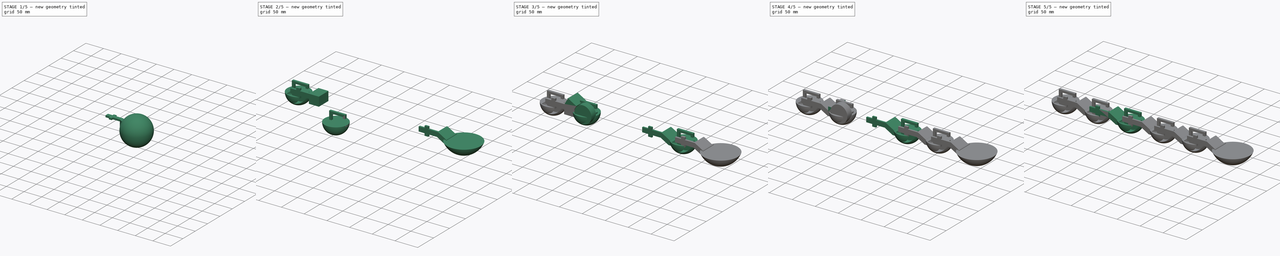
[diagram: build sequence overview — one tinted view per stage of 5, left to right]
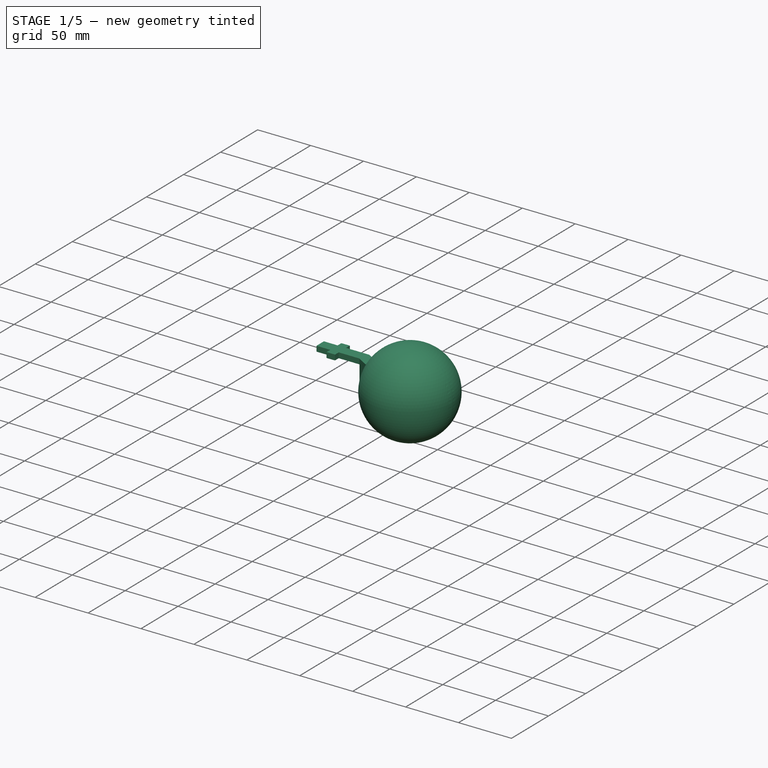
[diagram: stage 1 of 5 — iso view after this stage's code; geometry added in this stage tinted green]
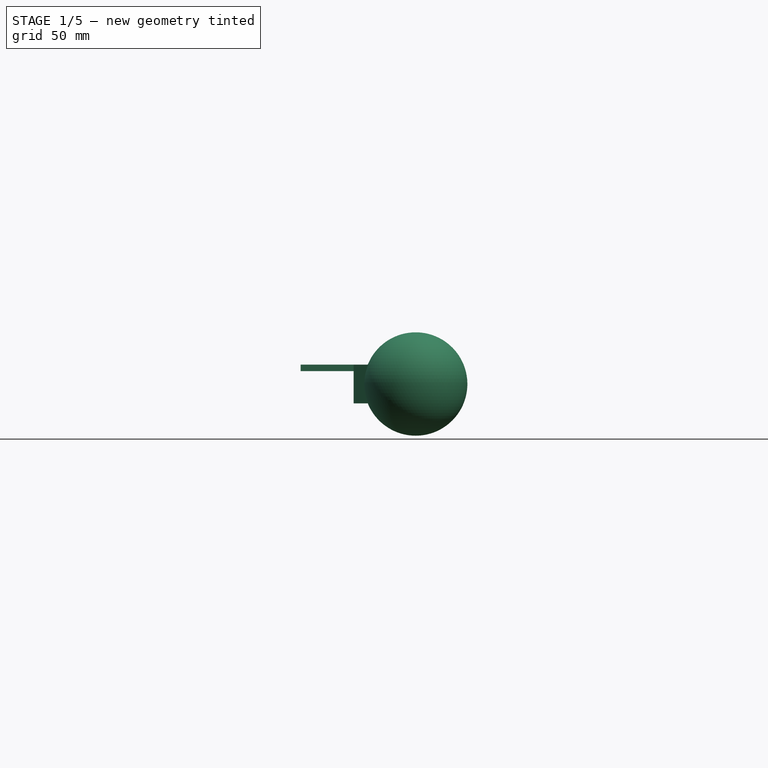
[diagram: stage 1 of 5 — front view after this stage's code; geometry added in this stage tinted green]
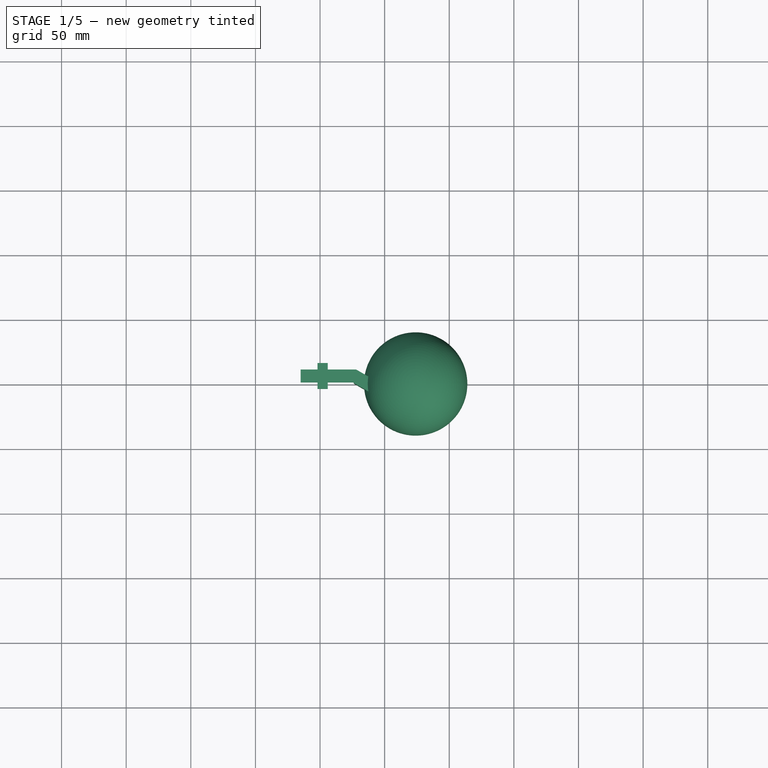
[diagram: stage 1 of 5 — top view after this stage's code; geometry added in this stage tinted green]
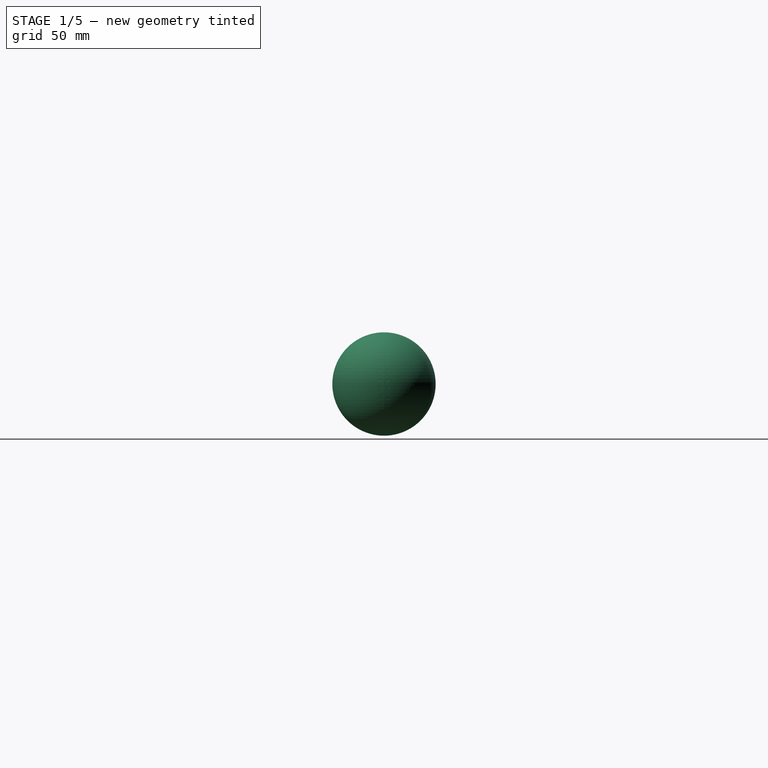
[diagram: stage 1 of 5 — right view after this stage's code; geometry added in this stage tinted green]
FCSTD DOCUMENT  (FreeCAD 0.20R29177 +233 (Git))
Label: configuracion_final
License: Creative Commons Attribution-ShareAlike
LicenseURL: http://creativecommons.org/licenses/by-sa/4.0/
objects: Part::Cut×73, Part::Box×61, Part::Extrusion×38, Sketcher::SketchObject×23, Part::MultiFuse×17, Part::Fuse×16, Part::Feature×15, Part::Sphere×13
note: 256 computed .brp shape members not serialized (recipe doc carries the construction recipe); baked Part::Feature solids carry a one-line shape summary decoded from their .brp

FEATURE [Part::Box] Box046  label="Cubo046"
  AttacherType = Attacher::AttachEngine3D
  Height = 30
  Length = 30
  Placement = pos=(-44,-10,19) rot=(0,0,1;0rad)
  Width = 30
FEATURE [Part::Box] Box047  label="Cubo047"
  AttacherType = Attacher::AttachEngine3D
  Height = 10
  Length = 15
  Placement = pos=(-82,-17,15) rot=(0,0,1;0rad)
  Width = 10
FEATURE [Part::Box] Box049  label="Cubo049"
  AttacherType = Attacher::AttachEngine3D
  Height = 320
  Length = 210
  Placement = pos=(0,-151,-150) rot=(0,0,1;0rad)
  Width = 320
FEATURE [Part::Box] Box050  label="Cubo050"
  AttacherType = Attacher::AttachEngine3D
  Height = 10
  Length = 15
  Placement = pos=(-82,-17,35) rot=(0,0,1;0rad)
  Width = 10
FEATURE [Part::Box] Box051  label="Cubo051"
  AttacherType = Attacher::AttachEngine3D
  Height = 10
  Length = 30
  Placement = pos=(-59,-18,15) rot=(0,0,1;0rad)
  Width = 10
FEATURE [Part::Box] Box052  label="Cubo052"
  AttacherType = Attacher::AttachEngine3D
  Height = 10
  Length = 30
  Placement = pos=(-59,-18,35) rot=(0,0,1;0rad)
  Width = 10
FEATURE [Part::Box] Box053  label="Cubo053"
  AttacherType = Attacher::AttachEngine3D
  Height = 20
  Length = 22
  Placement = pos=(-39,-15,15) rot=(0,0,1;0rad)
  Width = 30
FEATURE [Part::Box] Box054  label="Cubo054"
  AttacherType = Attacher::AttachEngine3D
  Height = 15
  Length = 21
  Placement = pos=(-37.99,-15,35.52) rot=(0,1,0;0.523599rad)
  Width = 30
FEATURE [Part::Box] Box055  label="Cubo055"
  AttacherType = Attacher::AttachEngine3D
  Height = 15
  Length = 21
  Placement = pos=(-46.5929,-15,11.6194) rot=(0,1,0;0.523599rad)
  Width = 30
FEATURE [Part::Box] Box056  label="Cubo056"
  AttacherType = Attacher::AttachEngine3D
  Height = 10
  Length = 10
  Placement = pos=(-20,-17,25) rot=(0,0,1;0rad)
  Width = 40
FEATURE [Part::Box] Box057  label="Cubo057"
  AttacherType = Attacher::AttachEngine3D
  Height = 48
  Length = 12
  Placement = pos=(2,0,0) rot=(0,0,1;0rad)
  Width = 10
FEATURE [Part::Box] Box058  label="Cubo058"
  AttacherType = Attacher::AttachEngine3D
  Height = 49
  Length = 45
  Placement = pos=(-18,-29,-2) rot=(0,0,1;0rad)
  Width = 55
FEATURE [Part::Box] Box059  label="Cubo059"
  AttacherType = Attacher::AttachEngine3D
  Height = 10
  Length = 10
  Placement = pos=(-25,-20,5) rot=(0,0,1;0rad)
  Width = 36
FEATURE [Sketcher::SketchObject] Sketch019
  FullyConstrained = false
  sketch-geometry (1):
    g0: Circle CenterX=53.4782 CenterY=36.9583 CenterZ=0 NormalX=0 NormalY=0 NormalZ=1 AngleXU=0 Radius=18.5
  constraints (1):
    c: Radius(g0) = 18.5
FEATURE [Part::Extrusion] Extrude033  label="hueco005"
  Base = -> Sketch019
  Dir = (0,0,1)
  DirMode = 2
  FaceMakerClass = Part::FaceMakerBullseye
  LengthFwd = 14
  LengthRev = 0
  Placement = pos=(-48,-6,-9.25) rot=(1,0,0;1.5708rad)
  Solid = true
  Symmetric = false
FEATURE [Sketcher::SketchObject] Sketch020
  FullyConstrained = false
  Placement = pos=(0,0,0) rot=(1,0,0;1.5708rad)
  sketch-geometry (8):
    g0: LineSegment StartX=0 StartY=0 StartZ=0 EndX=25 EndY=0 EndZ=0
    g1: LineSegment StartX=0 StartY=0 StartZ=0 EndX=0 EndY=-13 EndZ=0
    g2: LineSegment StartX=25 StartY=0 StartZ=0 EndX=25 EndY=-3 EndZ=0
    g3: LineSegment StartX=0 StartY=-13 StartZ=0 EndX=-5 EndY=-13 EndZ=0
    g4: LineSegment StartX=25 StartY=-3 StartZ=0 EndX=30 EndY=-3 EndZ=0
    g5: LineSegment StartX=-5 StartY=-13 StartZ=0 EndX=-5 EndY=5 EndZ=0
    g6: LineSegment StartX=30 StartY=-3 StartZ=0 EndX=30 EndY=5 EndZ=0
    g7: LineSegment StartX=-5 StartY=5 StartZ=0 EndX=30 EndY=5 EndZ=0
  constraints (20):
    c: Coincident(g0,g-1)
    c: Horizontal(g0)
    c: Coincident(g1,g0)
    c: Vertical(g1)
    c: Coincident(g2,g0)
    c: Vertical(g2)
    c: DistanceY(g2,g2) = 3
    c: Coincident(g3,g1)
    c: Horizontal(g3)
    c: Coincident(g4,g2)
    c: Horizontal(g4)
    c: Coincident(g5,g3)
    c: Coincident(g6,g4)
    c: Vertical(g6)
    c: Vertical(g5)
    c: DistanceY(g5,g5) = 18
    c: DistanceY(g6,g6) = 8
    c: Coincident(g7,g5)
    c: Coincident(g7,g6)
    c: Horizontal(g7)
FEATURE [Part::Extrusion] Extrude032
  Base = -> Sketch020
  Dir = (0,5,0)
  DirMode = 0
  FaceMakerClass = Part::FaceMakerBullseye
  LengthFwd = 5
  LengthRev = 0
  Solid = true
  Symmetric = false
FEATURE [Sketcher::SketchObject] Sketch021
  FullyConstrained = false
  Placement = pos=(0,0,0) rot=(1,0,0;1.5708rad)
  sketch-geometry (4):
    g0: LineSegment StartX=25 StartY=-13 StartZ=0 EndX=25 EndY=-10 EndZ=0
    g1: LineSegment StartX=30.0182 StartY=-13 StartZ=0 EndX=30.0182 EndY=-10 EndZ=0
    g2: LineSegment StartX=25 StartY=-10 StartZ=0 EndX=30.0182 EndY=-10 EndZ=0
    g3: LineSegment StartX=25 StartY=-13 StartZ=0 EndX=30.0182 EndY=-13 EndZ=0
  constraints (8):
    c: Vertical(g0)
    c: DistanceY(g0,g0) = 3
    c: Vertical(g1)
    c: DistanceY(g1,g1) = 3
    c: Coincident(g2,g0)
    c: Coincident(g2,g1)
    c: Coincident(g3,g0)
    c: Coincident(g3,g1)
FEATURE [Part::Extrusion] Extrude034
  Base = -> Sketch021
  Dir = (0,5,0)
  DirMode = 0
  FaceMakerClass = Part::FaceMakerBullseye
  LengthFwd = 5
  LengthRev = 0
  Solid = true
  Symmetric = false
FEATURE [Sketcher::SketchObject] Sketch022
  FullyConstrained = true
  MapMode = 2
  sketch-geometry (6):
    g0: LineSegment StartX=0 StartY=0 StartZ=0 EndX=0 EndY=-5 EndZ=0
    g1: LineSegment StartX=0 StartY=-5 StartZ=0 EndX=50 EndY=-5 EndZ=0
    g2: LineSegment StartX=50 StartY=-5 StartZ=0 EndX=50 EndY=15 EndZ=0
    g3: LineSegment StartX=50 StartY=15 StartZ=0 EndX=45 EndY=15 EndZ=0
    g4: LineSegment StartX=45 StartY=15 StartZ=0 EndX=45 EndY=0 EndZ=0
    g5: LineSegment StartX=45 StartY=0 StartZ=0 EndX=0 EndY=0 EndZ=0
  constraints (17):
    c: Coincident(g-1,g0)
    c: PointOnObject(g0,g-2)
    c: Coincident(g0,g1)
    c: Horizontal(g1)
    c: Coincident(g1,g2)
    c: Vertical(g2)
    c: Coincident(g2,g3)
    c: Horizontal(g3)
    c: Coincident(g3,g4)
    c: PointOnObject(g4,g-1)
    c: Vertical(g4)
    c: Coincident(g4,g5)
    c: Coincident(g5,g0)
    c: Distance(g1) = 50
    c: Distance(g0) = 5
    c: Distance(g3) = 5
    c: Distance(g4) = 15
FEATURE [Part::Extrusion] Extrude038
  Base = -> Sketch022
  Dir = (0,0,1)
  DirMode = 2
  FaceMakerClass = Part::FaceMakerBullseye
  LengthFwd = 20
  LengthRev = 0
  Solid = true
  Symmetric = false
FEATURE [Part::Sphere] Sphere010  label="Esfera010"
  Angle1 = -90
  Angle2 = 90
  Angle3 = 360
  AttacherType = Attacher::AttachEngine3D
  Placement = pos=(74,0,0) rot=(0,0,1;0rad)
  Radius = 40
FEATURE [Part::Sphere] Sphere011  label="Esfera011"
  Angle1 = -90
  Angle2 = 90
  Angle3 = 360
  AttacherType = Attacher::AttachEngine3D
  Radius = 150
FEATURE [Part::Cut] Cut057
  Base = -> Sphere011
  Tool = -> Box049
FEATURE [Part::Sphere] Sphere012  label="Esfera012"
  Angle1 = -90
  Angle2 = 90
  Angle3 = 360
  AttacherType = Attacher::AttachEngine3D
  Radius = 25
FEATURE [Part::Cut] Cut058
  Base = -> Sphere012
  Placement = pos=(10,0,-13) rot=(0,1,0;1.5708rad)
  Tool = -> Cut057
FEATURE [Part::MultiFuse] Fusion026
  Shapes = -> [Extrude032,Cut058]
FEATURE [Part::Fuse] Fusion027
  Base = -> Fusion026
  Placement = pos=(-10,0,38) rot=(0,0,1;0rad)
  Tool = -> Extrude034
FEATURE [Part::Cut] Cut059  label="base005"
  Base = -> Fusion027
  Tool = -> Extrude033
FEATURE [Part::Feature] circle1181
  Placement = pos=(80.8508,-13.1887,0) rot=(0,0,1;0rad)
  shape: bbox 0.8152 x 0.9368 x 1.995e-06 mm, 0 faces, 0 solids (baked)
FEATURE [Part::Extrusion] Extrude037
  Base = -> circle1181
  Dir = (0,0,1)
  DirMode = 2
  FaceMakerClass = Part::FaceMakerBullseye
  LengthFwd = 2
  LengthRev = 0
  Placement = pos=(22.5,0,0) rot=(0,0,1;0rad)
  Solid = true
  Symmetric = false
FEATURE [Part::Feature] circle1182
  Placement = pos=(80.8508,-10.0656,0) rot=(0,0,1;0rad)
  shape: bbox 0.8152 x 0.9368 x 1.995e-06 mm, 0 faces, 0 solids (baked)
FEATURE [Part::Extrusion] Extrude036
  Base = -> circle1182
  Dir = (0,0,1)
  DirMode = 2
  FaceMakerClass = Part::FaceMakerBullseye
  LengthFwd = 2
  LengthRev = 0
  Placement = pos=(22.5,0,0) rot=(0,0,1;0rad)
  Solid = true
  Symmetric = false
FEATURE [Part::Feature] path288
  shape: bbox 16.5 x 34.62 x 2e-07 mm, 0 faces, 0 solids (baked)
FEATURE [Part::Extrusion] Extrude035
  Base = -> path288
  Dir = (0,0,1)
  DirMode = 0
  FaceMakerClass = Part::FaceMakerBullseye
  LengthFwd = 1
  LengthRev = 0
  Solid = true
  Symmetric = false
FEATURE [Part::Fuse] Fusion028
  Base = -> Extrude035
  Tool = -> Extrude036
FEATURE [Part::Fuse] Fusion029
  Base = -> Fusion028
  Placement = pos=(46,2.9e-14,98) rot=(0.57735,0.57735,-0.57735;2.0944rad)
  Tool = -> Extrude037
FEATURE [Part::Cut] Cut060  label="agarre008"
  Base = -> Extrude038
  Placement = pos=(-80,-10,20) rot=(0,0,1;0rad)
  Tool = -> Fusion029
FEATURE [Part::Cut] Cut061
  Base = -> Cut060
  Tool = -> Box046
FEATURE [Part::Cut] Cut062
  Base = -> Cut061
  Tool = -> Box047
FEATURE [Part::Cut] Cut063
  Base = -> Cut062
  Tool = -> Box050
FEATURE [Part::Cut] Cut064
  Base = -> Cut063
  Tool = -> Box051
FEATURE [Part::Cut] Cut065
  Base = -> Cut064
  Tool = -> Box052
FEATURE [Part::MultiFuse] Fusion030
  Shapes = -> [Cut065,Box053]
FEATURE [Part::Cut] Cut066
  Base = -> Fusion030
  Tool = -> Box054
FEATURE [Part::Cut] Cut067
  Base = -> Cut066
  Tool = -> Box055
FEATURE [Part::Cut] Cut068  label="agarre009"
  Base = -> Cut067
  Tool = -> Box056
FEATURE [Part::MultiFuse] Fusion031
  Shapes = -> [Cut068,Cut059]
FEATURE [Part::Cut] Cut069
  Base = -> Fusion031
  Tool = -> Box057
FEATURE [Part::Cut] Cut070
  Base = -> Cut069
  Tool = -> Box058
FEATURE [Part::Cut] Cut071
  Base = -> Cut070
  Placement = pos=(65,-24,5e-15) rot=(-1,0,0;1.5708rad)
  Tool = -> Box059
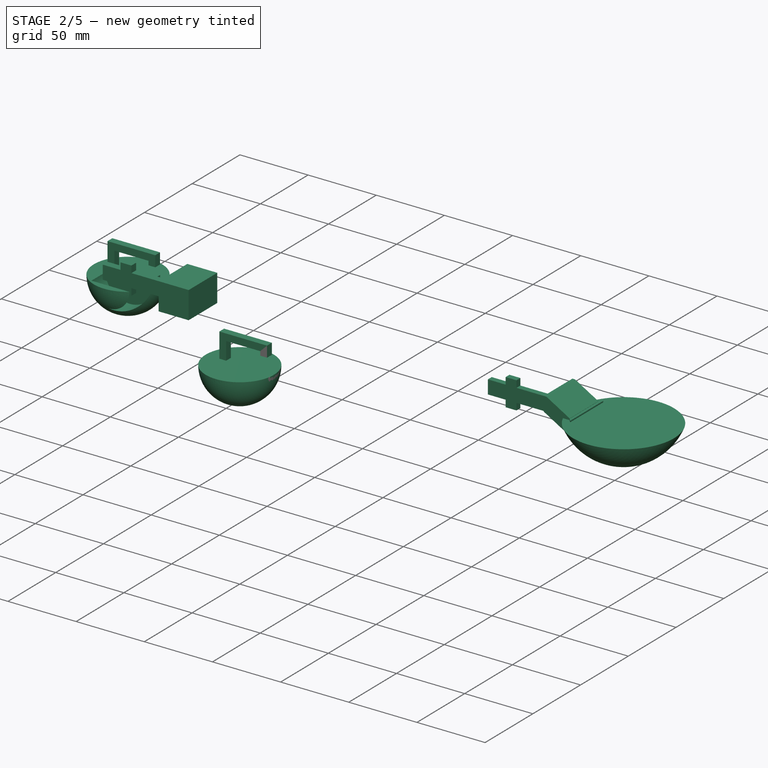
[diagram: stage 2 of 5 — iso view after this stage's code; geometry added in this stage tinted green]
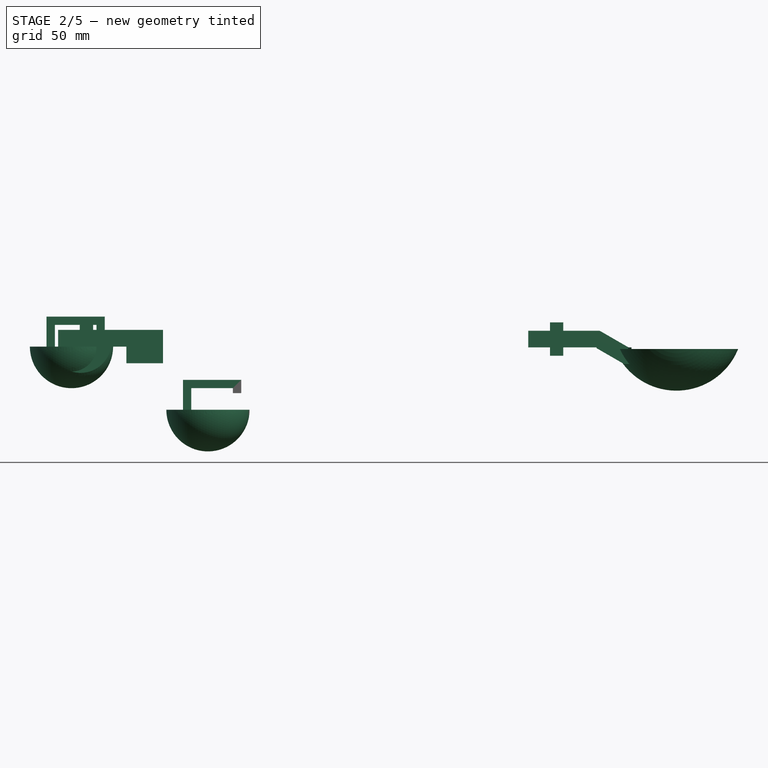
[diagram: stage 2 of 5 — front view after this stage's code; geometry added in this stage tinted green]
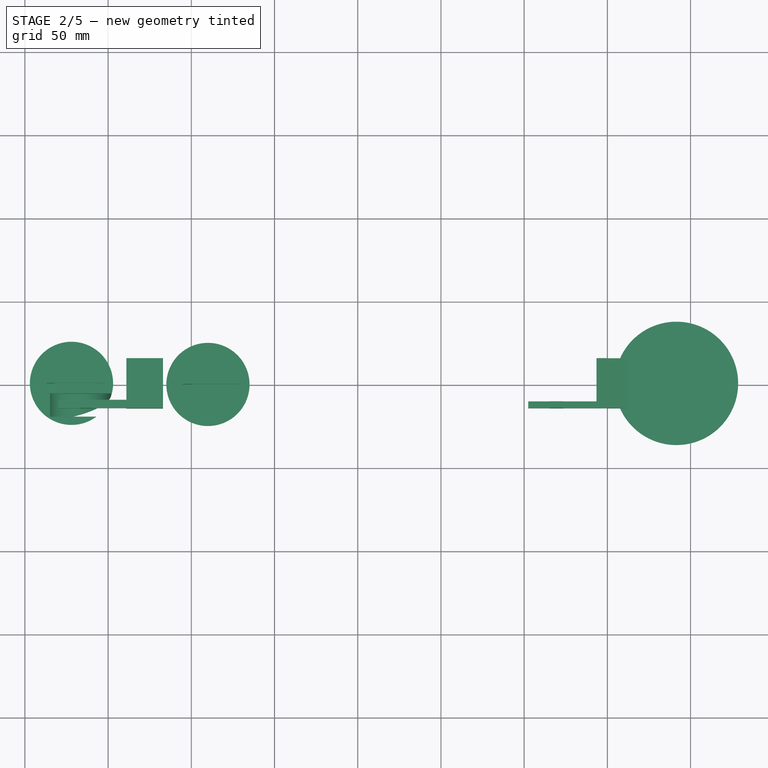
[diagram: stage 2 of 5 — top view after this stage's code; geometry added in this stage tinted green]
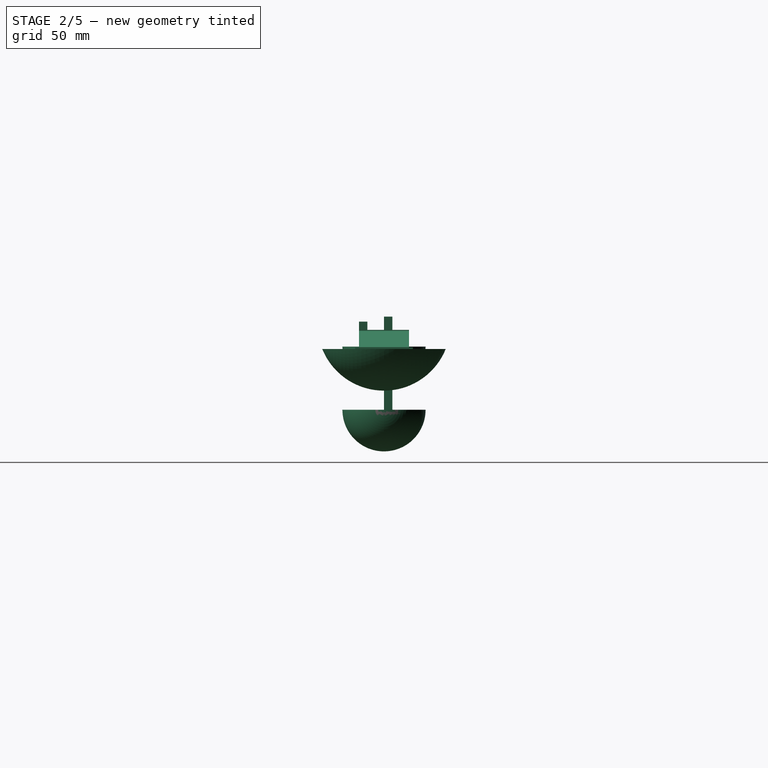
[diagram: stage 2 of 5 — right view after this stage's code; geometry added in this stage tinted green]
FEATURE [Part::Box] Box033  label="Cubo033"
  AttacherType = Attacher::AttachEngine3D
  Height = 320
  Length = 210
  Placement = pos=(0,-151,-150) rot=(0,0,1;0rad)
  Width = 320
FEATURE [Part::Box] Box034  label="Cubo034"
  AttacherType = Attacher::AttachEngine3D
  Height = 30
  Length = 30
  Placement = pos=(-44,-10,19) rot=(0,0,1;0rad)
  Width = 30
FEATURE [Part::Box] Box035  label="Cubo035"
  AttacherType = Attacher::AttachEngine3D
  Height = 10
  Length = 15
  Placement = pos=(-82,-17,15) rot=(0,0,1;0rad)
  Width = 10
FEATURE [Part::Box] Box036  label="Cubo036"
  AttacherType = Attacher::AttachEngine3D
  Height = 10
  Length = 15
  Placement = pos=(-82,-17,35) rot=(0,0,1;0rad)
  Width = 10
FEATURE [Part::Box] Box037  label="Cubo037"
  AttacherType = Attacher::AttachEngine3D
  Height = 10
  Length = 30
  Placement = pos=(-59,-18,15) rot=(0,0,1;0rad)
  Width = 10
FEATURE [Part::Box] Box038  label="Cubo038"
  AttacherType = Attacher::AttachEngine3D
  Height = 10
  Length = 30
  Placement = pos=(-59,-18,35) rot=(0,0,1;0rad)
  Width = 10
FEATURE [Part::Box] Box039  label="Cubo039"
  AttacherType = Attacher::AttachEngine3D
  Height = 20
  Length = 22
  Placement = pos=(-39,-15,15) rot=(0,0,1;0rad)
  Width = 30
FEATURE [Sketcher::SketchObject] Sketch013
  FullyConstrained = false
  Placement = pos=(0,0,0) rot=(1,0,0;1.5708rad)
  sketch-geometry (8):
    g0: LineSegment StartX=0 StartY=0 StartZ=0 EndX=25 EndY=0 EndZ=0
    g1: LineSegment StartX=0 StartY=0 StartZ=0 EndX=0 EndY=-13 EndZ=0
    g2: LineSegment StartX=25 StartY=0 StartZ=0 EndX=25 EndY=-3 EndZ=0
    g3: LineSegment StartX=0 StartY=-13 StartZ=0 EndX=-5 EndY=-13 EndZ=0
    g4: LineSegment StartX=25 StartY=-3 StartZ=0 EndX=30 EndY=-3 EndZ=0
    g5: LineSegment StartX=-5 StartY=-13 StartZ=0 EndX=-5 EndY=5 EndZ=0
    g6: LineSegment StartX=30 StartY=-3 StartZ=0 EndX=30 EndY=5 EndZ=0
    g7: LineSegment StartX=-5 StartY=5 StartZ=0 EndX=30 EndY=5 EndZ=0
  constraints (20):
    c: Coincident(g0,g-1)
    c: Horizontal(g0)
    c: Coincident(g1,g0)
    c: Vertical(g1)
    c: Coincident(g2,g0)
    c: Vertical(g2)
    c: DistanceY(g2,g2) = 3
    c: Coincident(g3,g1)
    c: Horizontal(g3)
    c: Coincident(g4,g2)
    c: Horizontal(g4)
    c: Coincident(g5,g3)
    c: Coincident(g6,g4)
    c: Vertical(g6)
    c: Vertical(g5)
    c: DistanceY(g5,g5) = 18
    c: DistanceY(g6,g6) = 8
    c: Coincident(g7,g5)
    c: Coincident(g7,g6)
    c: Horizontal(g7)
FEATURE [Part::Extrusion] Extrude022
  Base = -> Sketch013
  Dir = (0,5,0)
  DirMode = 0
  FaceMakerClass = Part::FaceMakerBullseye
  LengthFwd = 5
  LengthRev = 0
  Solid = true
  Symmetric = false
FEATURE [Sketcher::SketchObject] Sketch015
  FullyConstrained = true
  MapMode = 2
  sketch-geometry (6):
    g0: LineSegment StartX=0 StartY=0 StartZ=0 EndX=0 EndY=-5 EndZ=0
    g1: LineSegment StartX=0 StartY=-5 StartZ=0 EndX=50 EndY=-5 EndZ=0
    g2: LineSegment StartX=50 StartY=-5 StartZ=0 EndX=50 EndY=15 EndZ=0
    g3: LineSegment StartX=50 StartY=15 StartZ=0 EndX=45 EndY=15 EndZ=0
    g4: LineSegment StartX=45 StartY=15 StartZ=0 EndX=45 EndY=0 EndZ=0
    g5: LineSegment StartX=45 StartY=0 StartZ=0 EndX=0 EndY=0 EndZ=0
  constraints (17):
    c: Coincident(g-1,g0)
    c: PointOnObject(g0,g-2)
    c: Coincident(g0,g1)
    c: Horizontal(g1)
    c: Coincident(g1,g2)
    c: Vertical(g2)
    c: Coincident(g2,g3)
    c: Horizontal(g3)
    c: Coincident(g3,g4)
    c: PointOnObject(g4,g-1)
    c: Vertical(g4)
    c: Coincident(g4,g5)
    c: Coincident(g5,g0)
    c: Distance(g1) = 50
    c: Distance(g0) = 5
    c: Distance(g3) = 5
    c: Distance(g4) = 15
FEATURE [Part::Extrusion] Extrude028
  Base = -> Sketch015
  Dir = (0,0,1)
  DirMode = 2
  FaceMakerClass = Part::FaceMakerBullseye
  LengthFwd = 20
  LengthRev = 0
  Solid = true
  Symmetric = false
FEATURE [Part::Sphere] Sphere006  label="Esfera006"
  Angle1 = -90
  Angle2 = 90
  Angle3 = 360
  AttacherType = Attacher::AttachEngine3D
  Radius = 150
FEATURE [Part::Cut] Cut039
  Base = -> Sphere006
  Tool = -> Box033
FEATURE [Part::Sphere] Sphere007  label="Esfera007"
  Angle1 = -90
  Angle2 = 90
  Angle3 = 360
  AttacherType = Attacher::AttachEngine3D
  Radius = 25
FEATURE [Part::Cut] Cut040
  Base = -> Sphere007
  Placement = pos=(10,0,-13) rot=(0,1,0;1.5708rad)
  Tool = -> Cut039
FEATURE [Part::Feature] circle1179
  Placement = pos=(80.8508,-13.1887,0) rot=(0,0,1;0rad)
  shape: bbox 0.8152 x 0.9368 x 1.995e-06 mm, 0 faces, 0 solids (baked)
FEATURE [Part::Extrusion] Extrude027
  Base = -> circle1179
  Dir = (0,0,1)
  DirMode = 2
  FaceMakerClass = Part::FaceMakerBullseye
  LengthFwd = 2
  LengthRev = 0
  Placement = pos=(22.5,0,0) rot=(0,0,1;0rad)
  Solid = true
  Symmetric = false
FEATURE [Part::Feature] circle1180
  Placement = pos=(80.8508,-10.0656,0) rot=(0,0,1;0rad)
  shape: bbox 0.8152 x 0.9368 x 1.995e-06 mm, 0 faces, 0 solids (baked)
FEATURE [Part::Extrusion] Extrude026
  Base = -> circle1180
  Dir = (0,0,1)
  DirMode = 2
  FaceMakerClass = Part::FaceMakerBullseye
  LengthFwd = 2
  LengthRev = 0
  Placement = pos=(22.5,0,0) rot=(0,0,1;0rad)
  Solid = true
  Symmetric = false
FEATURE [Part::Feature] path287
  shape: bbox 16.5 x 34.62 x 2e-07 mm, 0 faces, 0 solids (baked)
FEATURE [Part::Extrusion] Extrude025
  Base = -> path287
  Dir = (0,0,1)
  DirMode = 0
  FaceMakerClass = Part::FaceMakerBullseye
  LengthFwd = 1
  LengthRev = 0
  Solid = true
  Symmetric = false
FEATURE [Part::Fuse] Fusion020
  Base = -> Extrude025
  Tool = -> Extrude026
FEATURE [Part::Fuse] Fusion021
  Base = -> Fusion020
  Placement = pos=(46,2.9e-14,98) rot=(0.57735,0.57735,-0.57735;2.0944rad)
  Tool = -> Extrude027
FEATURE [Part::Cut] Cut042  label="agarre006"
  Base = -> Extrude028
  Placement = pos=(-80,-10,20) rot=(0,0,1;0rad)
  Tool = -> Fusion021
FEATURE [Part::Cut] Cut043
  Base = -> Cut042
  Tool = -> Box034
FEATURE [Part::Cut] Cut044
  Base = -> Cut043
  Tool = -> Box035
FEATURE [Part::Cut] Cut045
  Base = -> Cut044
  Tool = -> Box036
FEATURE [Part::Cut] Cut046
  Base = -> Cut045
  Tool = -> Box037
FEATURE [Part::Cut] Cut047
  Base = -> Cut046
  Tool = -> Box038
FEATURE [Part::MultiFuse] Fusion022
  Shapes = -> [Cut047,Box039]
FEATURE [Part::Box] Box044  label="Cubo044"
  AttacherType = Attacher::AttachEngine3D
  Height = 320
  Length = 210
  Placement = pos=(0,-151,-150) rot=(0,0,1;0rad)
  Width = 320
FEATURE [Sketcher::SketchObject] Sketch016
  FullyConstrained = false
  sketch-geometry (1):
    g0: Circle CenterX=53.4782 CenterY=36.9583 CenterZ=0 NormalX=0 NormalY=0 NormalZ=1 AngleXU=0 Radius=18.5
  constraints (1):
    c: Radius(g0) = 18.5
FEATURE [Part::Extrusion] Extrude030  label="hueco004"
  Base = -> Sketch016
  Dir = (0,0,1)
  DirMode = 2
  FaceMakerClass = Part::FaceMakerBullseye
  LengthFwd = 14
  LengthRev = 0
  Placement = pos=(-48,-6,-9.25) rot=(1,0,0;1.5708rad)
  Solid = true
  Symmetric = false
FEATURE [Sketcher::SketchObject] Sketch017
  FullyConstrained = false
  Placement = pos=(0,0,0) rot=(1,0,0;1.5708rad)
  sketch-geometry (8):
    g0: LineSegment StartX=0 StartY=0 StartZ=0 EndX=25 EndY=0 EndZ=0
    g1: LineSegment StartX=0 StartY=0 StartZ=0 EndX=0 EndY=-13 EndZ=0
    g2: LineSegment StartX=25 StartY=0 StartZ=0 EndX=25 EndY=-3 EndZ=0
    g3: LineSegment StartX=0 StartY=-13 StartZ=0 EndX=-5 EndY=-13 EndZ=0
    g4: LineSegment StartX=25 StartY=-3 StartZ=0 EndX=30 EndY=-3 EndZ=0
    g5: LineSegment StartX=-5 StartY=-13 StartZ=0 EndX=-5 EndY=5 EndZ=0
    g6: LineSegment StartX=30 StartY=-3 StartZ=0 EndX=30 EndY=5 EndZ=0
    g7: LineSegment StartX=-5 StartY=5 StartZ=0 EndX=30 EndY=5 EndZ=0
  constraints (20):
    c: Coincident(g0,g-1)
    c: Horizontal(g0)
    c: Coincident(g1,g0)
    c: Vertical(g1)
    c: Coincident(g2,g0)
    c: Vertical(g2)
    c: DistanceY(g2,g2) = 3
    c: Coincident(g3,g1)
    c: Horizontal(g3)
    c: Coincident(g4,g2)
    c: Horizontal(g4)
    c: Coincident(g5,g3)
    c: Coincident(g6,g4)
    c: Vertical(g6)
    c: Vertical(g5)
    c: DistanceY(g5,g5) = 18
    c: DistanceY(g6,g6) = 8
    c: Coincident(g7,g5)
    c: Coincident(g7,g6)
    c: Horizontal(g7)
FEATURE [Part::Extrusion] Extrude029
  Base = -> Sketch017
  Dir = (0,5,0)
  DirMode = 0
  FaceMakerClass = Part::FaceMakerBullseye
  LengthFwd = 5
  LengthRev = 0
  Solid = true
  Symmetric = false
FEATURE [Sketcher::SketchObject] Sketch018
  FullyConstrained = false
  Placement = pos=(0,0,0) rot=(1,0,0;1.5708rad)
  sketch-geometry (4):
    g0: LineSegment StartX=25 StartY=-13 StartZ=0 EndX=25 EndY=-10 EndZ=0
    g1: LineSegment StartX=30.0182 StartY=-13 StartZ=0 EndX=30.0182 EndY=-10 EndZ=0
    g2: LineSegment StartX=25 StartY=-10 StartZ=0 EndX=30.0182 EndY=-10 EndZ=0
    g3: LineSegment StartX=25 StartY=-13 StartZ=0 EndX=30.0182 EndY=-13 EndZ=0
  constraints (8):
    c: Vertical(g0)
    c: DistanceY(g0,g0) = 3
    c: Vertical(g1)
    c: DistanceY(g1,g1) = 3
    c: Coincident(g2,g0)
    c: Coincident(g2,g1)
    c: Coincident(g3,g0)
    c: Coincident(g3,g1)
FEATURE [Part::Extrusion] Extrude031
  Base = -> Sketch018
  Dir = (0,5,0)
  DirMode = 0
  FaceMakerClass = Part::FaceMakerBullseye
  LengthFwd = 5
  LengthRev = 0
  Solid = true
  Symmetric = false
FEATURE [Part::Sphere] Sphere008  label="Esfera008"
  Angle1 = -90
  Angle2 = 90
  Angle3 = 360
  AttacherType = Attacher::AttachEngine3D
  Radius = 150
FEATURE [Part::Cut] Cut052
  Base = -> Sphere008
  Tool = -> Box044
FEATURE [Part::Sphere] Sphere009  label="Esfera009"
  Angle1 = -90
  Angle2 = 90
  Angle3 = 360
  AttacherType = Attacher::AttachEngine3D
  Radius = 25
FEATURE [Part::Cut] Cut053
  Base = -> Sphere009
  Placement = pos=(10,0,-13) rot=(0,1,0;1.5708rad)
  Tool = -> Cut052
FEATURE [Part::MultiFuse] Fusion024
  Shapes = -> [Extrude029,Cut053]
FEATURE [Part::Fuse] Fusion025
  Base = -> Fusion024
  Placement = pos=(-10,0,38) rot=(0,0,1;0rad)
  Tool = -> Extrude031
FEATURE [Part::Cut] Cut054  label="cola"
  Base = -> Fusion025
  Placement = pos=(-72,0,0) rot=(0,0,1;0rad)
  Tool = -> Extrude030
FEATURE [Part::Box] Box045  label="Cubo045"
  AttacherType = Attacher::AttachEngine3D
  Height = 200
  Length = 200
  Placement = pos=(-32,0,-46) rot=(0,0,1;0rad)
  Width = 200
FEATURE [Part::Box] Box048  label="Cubo048"
  AttacherType = Attacher::AttachEngine3D
  Height = 210
  Length = 200
  Placement = pos=(-35,0,-41) rot=(0,0,1;0rad)
  Width = 25
FEATURE [Part::Box] Box060  label="Cubo060"
  AttacherType = Attacher::AttachEngine3D
  Height = 10
  Length = 44
  Placement = pos=(-18,-5,1) rot=(0,0,1;0rad)
  Width = 25
FEATURE [Part::Cut] Cut055
  Base = -> Sphere010
  Placement = pos=(0,15,0) rot=(0,0,1;0rad)
  Tool = -> Box045
FEATURE [Part::Cut] Cut056
  Base = -> Cut055
  Tool = -> Box048
FEATURE [Part::MultiFuse] Fusion032
  Shapes = -> [Cut056,Cut071]
FEATURE [Part::Cut] Cut072  label="arduino"
  Base = -> Fusion032
  Placement = pos=(217.5,5.2e-15,23.5) rot=(1,0,0;1.5708rad)
  Tool = -> Box060
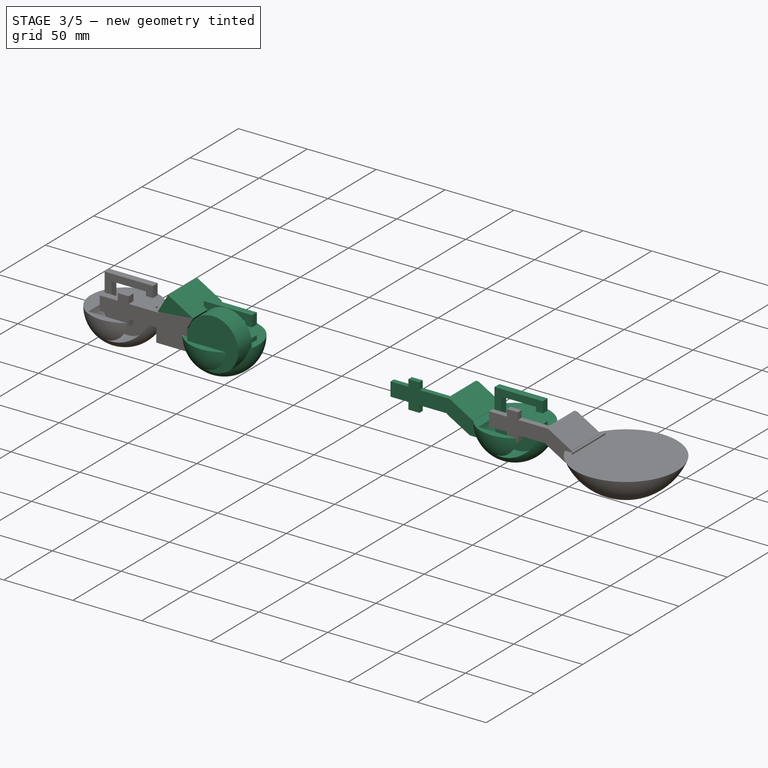
[diagram: stage 3 of 5 — iso view after this stage's code; geometry added in this stage tinted green]
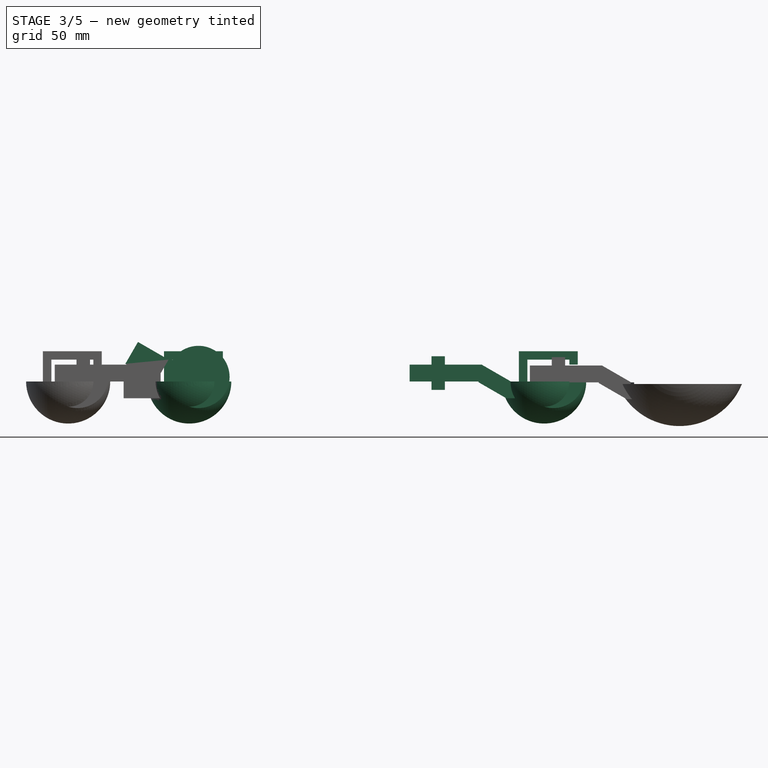
[diagram: stage 3 of 5 — front view after this stage's code; geometry added in this stage tinted green]
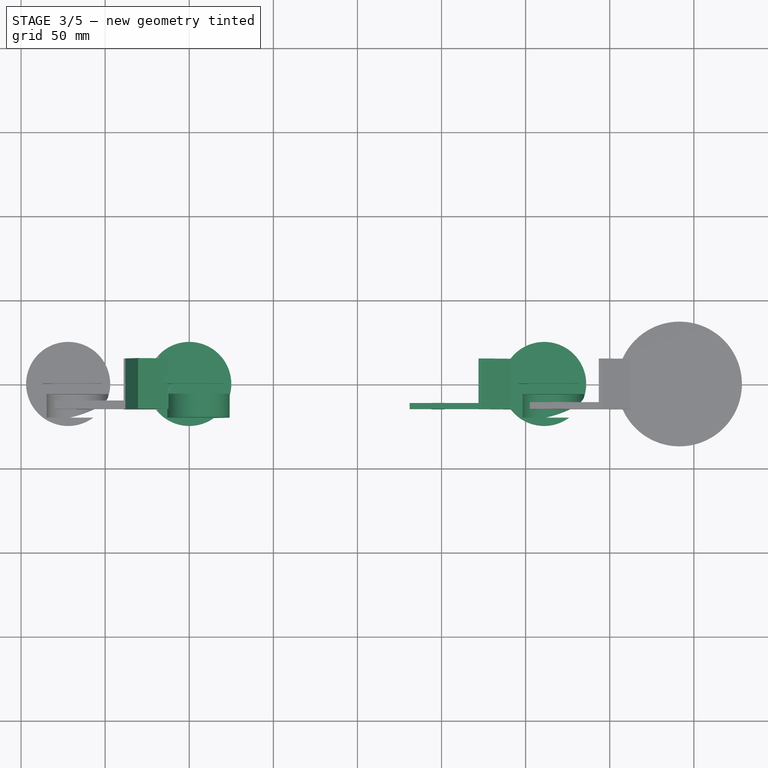
[diagram: stage 3 of 5 — top view after this stage's code; geometry added in this stage tinted green]
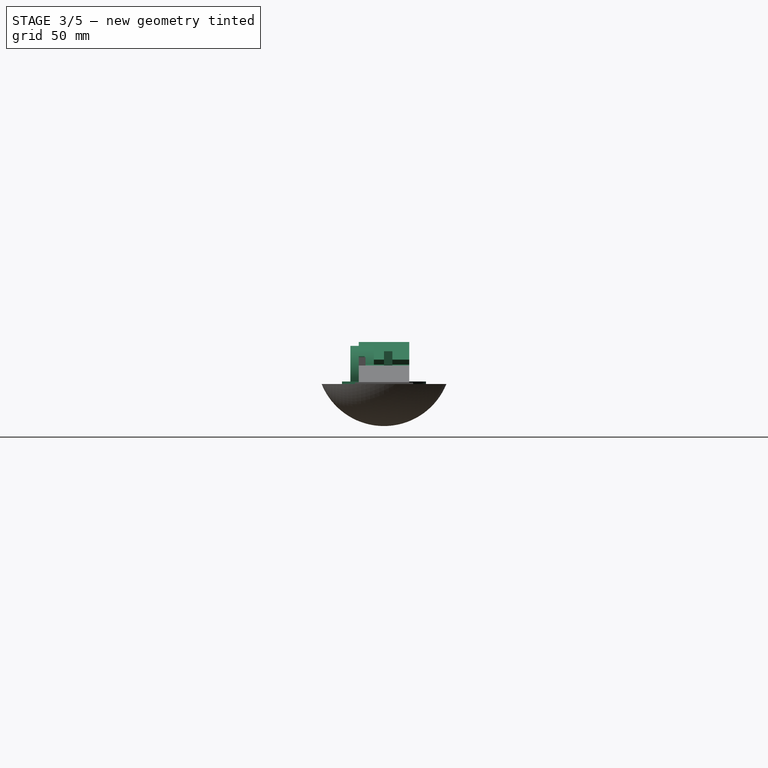
[diagram: stage 3 of 5 — right view after this stage's code; geometry added in this stage tinted green]
FEATURE [Part::Box] Box022  label="Cubo022"
  AttacherType = Attacher::AttachEngine3D
  Height = 320
  Length = 210
  Placement = pos=(0,-151,-150) rot=(0,0,1;0rad)
  Width = 320
FEATURE [Part::Box] Box023  label="Cubo023"
  AttacherType = Attacher::AttachEngine3D
  Height = 30
  Length = 30
  Placement = pos=(-44,-10,19) rot=(0,0,1;0rad)
  Width = 30
FEATURE [Part::Box] Box024  label="Cubo024"
  AttacherType = Attacher::AttachEngine3D
  Height = 10
  Length = 15
  Placement = pos=(-82,-17,15) rot=(0,0,1;0rad)
  Width = 10
FEATURE [Part::Box] Box025  label="Cubo025"
  AttacherType = Attacher::AttachEngine3D
  Height = 10
  Length = 15
  Placement = pos=(-82,-17,35) rot=(0,0,1;0rad)
  Width = 10
FEATURE [Part::Box] Box026  label="Cubo026"
  AttacherType = Attacher::AttachEngine3D
  Height = 10
  Length = 30
  Placement = pos=(-59,-18,15) rot=(0,0,1;0rad)
  Width = 10
FEATURE [Part::Box] Box027  label="Cubo027"
  AttacherType = Attacher::AttachEngine3D
  Height = 10
  Length = 30
  Placement = pos=(-59,-18,35) rot=(0,0,1;0rad)
  Width = 10
FEATURE [Part::Box] Box028  label="Cubo028"
  AttacherType = Attacher::AttachEngine3D
  Height = 20
  Length = 22
  Placement = pos=(-39,-15,15) rot=(0,0,1;0rad)
  Width = 30
FEATURE [Part::Box] Box029  label="Cubo029"
  AttacherType = Attacher::AttachEngine3D
  Height = 15
  Length = 21
  Placement = pos=(-37.99,-15,35.52) rot=(0,1,0;0.523599rad)
  Width = 30
FEATURE [Sketcher::SketchObject] Sketch008
  FullyConstrained = false
  sketch-geometry (1):
    g0: Circle CenterX=53.4782 CenterY=36.9583 CenterZ=0 NormalX=0 NormalY=0 NormalZ=1 AngleXU=0 Radius=18.5
  constraints (1):
    c: Radius(g0) = 18.5
FEATURE [Part::Extrusion] Extrude016  label="hueco002"
  Base = -> Sketch008
  Dir = (0,0,1)
  DirMode = 2
  FaceMakerClass = Part::FaceMakerBullseye
  LengthFwd = 14
  LengthRev = 0
  Placement = pos=(-48,-6,-9.25) rot=(1,0,0;1.5708rad)
  Solid = true
  Symmetric = false
FEATURE [Sketcher::SketchObject] Sketch009
  FullyConstrained = false
  Placement = pos=(0,0,0) rot=(1,0,0;1.5708rad)
  sketch-geometry (8):
    g0: LineSegment StartX=0 StartY=0 StartZ=0 EndX=25 EndY=0 EndZ=0
    g1: LineSegment StartX=0 StartY=0 StartZ=0 EndX=0 EndY=-13 EndZ=0
    g2: LineSegment StartX=25 StartY=0 StartZ=0 EndX=25 EndY=-3 EndZ=0
    g3: LineSegment StartX=0 StartY=-13 StartZ=0 EndX=-5 EndY=-13 EndZ=0
    g4: LineSegment StartX=25 StartY=-3 StartZ=0 EndX=30 EndY=-3 EndZ=0
    g5: LineSegment StartX=-5 StartY=-13 StartZ=0 EndX=-5 EndY=5 EndZ=0
    g6: LineSegment StartX=30 StartY=-3 StartZ=0 EndX=30 EndY=5 EndZ=0
    g7: LineSegment StartX=-5 StartY=5 StartZ=0 EndX=30 EndY=5 EndZ=0
  constraints (20):
    c: Coincident(g0,g-1)
    c: Horizontal(g0)
    c: Coincident(g1,g0)
    c: Vertical(g1)
    c: Coincident(g2,g0)
    c: Vertical(g2)
    c: DistanceY(g2,g2) = 3
    c: Coincident(g3,g1)
    c: Horizontal(g3)
    c: Coincident(g4,g2)
    c: Horizontal(g4)
    c: Coincident(g5,g3)
    c: Coincident(g6,g4)
    c: Vertical(g6)
    c: Vertical(g5)
    c: DistanceY(g5,g5) = 18
    c: DistanceY(g6,g6) = 8
    c: Coincident(g7,g5)
    c: Coincident(g7,g6)
    c: Horizontal(g7)
FEATURE [Part::Extrusion] Extrude015
  Base = -> Sketch009
  Dir = (0,5,0)
  DirMode = 0
  FaceMakerClass = Part::FaceMakerBullseye
  LengthFwd = 5
  LengthRev = 0
  Solid = true
  Symmetric = false
FEATURE [Sketcher::SketchObject] Sketch010
  FullyConstrained = false
  Placement = pos=(0,0,0) rot=(1,0,0;1.5708rad)
  sketch-geometry (4):
    g0: LineSegment StartX=25 StartY=-13 StartZ=0 EndX=25 EndY=-10 EndZ=0
    g1: LineSegment StartX=30.0182 StartY=-13 StartZ=0 EndX=30.0182 EndY=-10 EndZ=0
    g2: LineSegment StartX=25 StartY=-10 StartZ=0 EndX=30.0182 EndY=-10 EndZ=0
    g3: LineSegment StartX=25 StartY=-13 StartZ=0 EndX=30.0182 EndY=-13 EndZ=0
  constraints (8):
    c: Vertical(g0)
    c: DistanceY(g0,g0) = 3
    c: Vertical(g1)
    c: DistanceY(g1,g1) = 3
    c: Coincident(g2,g0)
    c: Coincident(g2,g1)
    c: Coincident(g3,g0)
    c: Coincident(g3,g1)
FEATURE [Part::Extrusion] Extrude017
  Base = -> Sketch010
  Dir = (0,5,0)
  DirMode = 0
  FaceMakerClass = Part::FaceMakerBullseye
  LengthFwd = 5
  LengthRev = 0
  Solid = true
  Symmetric = false
FEATURE [Sketcher::SketchObject] Sketch011
  FullyConstrained = true
  MapMode = 2
  sketch-geometry (6):
    g0: LineSegment StartX=0 StartY=0 StartZ=0 EndX=0 EndY=-5 EndZ=0
    g1: LineSegment StartX=0 StartY=-5 StartZ=0 EndX=50 EndY=-5 EndZ=0
    g2: LineSegment StartX=50 StartY=-5 StartZ=0 EndX=50 EndY=15 EndZ=0
    g3: LineSegment StartX=50 StartY=15 StartZ=0 EndX=45 EndY=15 EndZ=0
    g4: LineSegment StartX=45 StartY=15 StartZ=0 EndX=45 EndY=0 EndZ=0
    g5: LineSegment StartX=45 StartY=0 StartZ=0 EndX=0 EndY=0 EndZ=0
  constraints (17):
    c: Coincident(g-1,g0)
    c: PointOnObject(g0,g-2)
    c: Coincident(g0,g1)
    c: Horizontal(g1)
    c: Coincident(g1,g2)
    c: Vertical(g2)
    c: Coincident(g2,g3)
    c: Horizontal(g3)
    c: Coincident(g3,g4)
    c: PointOnObject(g4,g-1)
    c: Vertical(g4)
    c: Coincident(g4,g5)
    c: Coincident(g5,g0)
    c: Distance(g1) = 50
    c: Distance(g0) = 5
    c: Distance(g3) = 5
    c: Distance(g4) = 15
FEATURE [Part::Extrusion] Extrude021
  Base = -> Sketch011
  Dir = (0,0,1)
  DirMode = 2
  FaceMakerClass = Part::FaceMakerBullseye
  LengthFwd = 20
  LengthRev = 0
  Solid = true
  Symmetric = false
FEATURE [Part::Sphere] Sphere004  label="Esfera004"
  Angle1 = -90
  Angle2 = 90
  Angle3 = 360
  AttacherType = Attacher::AttachEngine3D
  Radius = 150
FEATURE [Part::Cut] Cut026
  Base = -> Sphere004
  Tool = -> Box022
FEATURE [Part::Sphere] Sphere005  label="Esfera005"
  Angle1 = -90
  Angle2 = 90
  Angle3 = 360
  AttacherType = Attacher::AttachEngine3D
  Radius = 25
FEATURE [Part::Cut] Cut027
  Base = -> Sphere005
  Placement = pos=(10,0,-13) rot=(0,1,0;1.5708rad)
  Tool = -> Cut026
FEATURE [Part::MultiFuse] Fusion012
  Shapes = -> [Extrude015,Cut027]
FEATURE [Part::Fuse] Fusion013
  Base = -> Fusion012
  Placement = pos=(-10,0,38) rot=(0,0,1;0rad)
  Tool = -> Extrude017
FEATURE [Part::Feature] circle1177
  Placement = pos=(80.8508,-13.1887,0) rot=(0,0,1;0rad)
  shape: bbox 0.8152 x 0.9368 x 1.995e-06 mm, 0 faces, 0 solids (baked)
FEATURE [Part::Extrusion] Extrude020
  Base = -> circle1177
  Dir = (0,0,1)
  DirMode = 2
  FaceMakerClass = Part::FaceMakerBullseye
  LengthFwd = 2
  LengthRev = 0
  Placement = pos=(22.5,0,0) rot=(0,0,1;0rad)
  Solid = true
  Symmetric = false
FEATURE [Part::Feature] circle1178
  Placement = pos=(80.8508,-10.0656,0) rot=(0,0,1;0rad)
  shape: bbox 0.8152 x 0.9368 x 1.995e-06 mm, 0 faces, 0 solids (baked)
FEATURE [Part::Extrusion] Extrude019
  Base = -> circle1178
  Dir = (0,0,1)
  DirMode = 2
  FaceMakerClass = Part::FaceMakerBullseye
  LengthFwd = 2
  LengthRev = 0
  Placement = pos=(22.5,0,0) rot=(0,0,1;0rad)
  Solid = true
  Symmetric = false
FEATURE [Part::Feature] path286
  shape: bbox 16.5 x 34.62 x 2e-07 mm, 0 faces, 0 solids (baked)
FEATURE [Part::Extrusion] Extrude018
  Base = -> path286
  Dir = (0,0,1)
  DirMode = 0
  FaceMakerClass = Part::FaceMakerBullseye
  LengthFwd = 1
  LengthRev = 0
  Solid = true
  Symmetric = false
FEATURE [Part::Fuse] Fusion014
  Base = -> Extrude018
  Tool = -> Extrude019
FEATURE [Part::Fuse] Fusion015
  Base = -> Fusion014
  Placement = pos=(46,2.9e-14,98) rot=(0.57735,0.57735,-0.57735;2.0944rad)
  Tool = -> Extrude020
FEATURE [Part::Cut] Cut029  label="agarre004"
  Base = -> Extrude021
  Placement = pos=(-80,-10,20) rot=(0,0,1;0rad)
  Tool = -> Fusion015
FEATURE [Part::Cut] Cut030
  Base = -> Cut029
  Tool = -> Box023
FEATURE [Part::Cut] Cut031
  Base = -> Cut030
  Tool = -> Box024
FEATURE [Part::Cut] Cut032
  Base = -> Cut031
  Tool = -> Box025
FEATURE [Part::Cut] Cut033
  Base = -> Cut032
  Tool = -> Box026
FEATURE [Part::Cut] Cut034
  Base = -> Cut033
  Tool = -> Box027
FEATURE [Part::MultiFuse] Fusion016
  Shapes = -> [Cut034,Box028]
FEATURE [Part::Box] Box040  label="Cubo040"
  AttacherType = Attacher::AttachEngine3D
  Height = 15
  Length = 21
  Placement = pos=(-37.99,-15,35.52) rot=(0,1,0;0.523599rad)
  Width = 30
FEATURE [Part::Box] Box041  label="Cubo041"
  AttacherType = Attacher::AttachEngine3D
  Height = 15
  Length = 21
  Placement = pos=(-46.5929,-15,11.6194) rot=(0,1,0;0.523599rad)
  Width = 30
FEATURE [Part::Box] Box042  label="Cubo042"
  AttacherType = Attacher::AttachEngine3D
  Height = 10
  Length = 10
  Placement = pos=(-20,-17,25) rot=(0,0,1;0rad)
  Width = 40
FEATURE [Part::Box] Box043  label="Cubo043"
  AttacherType = Attacher::AttachEngine3D
  Height = 24
  Length = 43
  Placement = pos=(-82,-11.5,17.5) rot=(0,0,1;0rad)
  Width = 4
FEATURE [Sketcher::SketchObject] Sketch012
  FullyConstrained = false
  sketch-geometry (1):
    g0: Circle CenterX=53.4782 CenterY=36.9583 CenterZ=0 NormalX=0 NormalY=0 NormalZ=1 AngleXU=0 Radius=18.5
  constraints (1):
    c: Radius(g0) = 18.5
FEATURE [Part::Extrusion] Extrude023  label="hueco003"
  Base = -> Sketch012
  Dir = (0,0,1)
  DirMode = 2
  FaceMakerClass = Part::FaceMakerBullseye
  LengthFwd = 14
  LengthRev = 0
  Placement = pos=(-48,-6,-9.25) rot=(1,0,0;1.5708rad)
  Solid = true
  Symmetric = false
FEATURE [Sketcher::SketchObject] Sketch014
  FullyConstrained = false
  Placement = pos=(0,0,0) rot=(1,0,0;1.5708rad)
  sketch-geometry (4):
    g0: LineSegment StartX=25 StartY=-13 StartZ=0 EndX=25 EndY=-10 EndZ=0
    g1: LineSegment StartX=30.0182 StartY=-13 StartZ=0 EndX=30.0182 EndY=-10 EndZ=0
    g2: LineSegment StartX=25 StartY=-10 StartZ=0 EndX=30.0182 EndY=-10 EndZ=0
    g3: LineSegment StartX=25 StartY=-13 StartZ=0 EndX=30.0182 EndY=-13 EndZ=0
  constraints (8):
    c: Vertical(g0)
    c: DistanceY(g0,g0) = 3
    c: Vertical(g1)
    c: DistanceY(g1,g1) = 3
    c: Coincident(g2,g0)
    c: Coincident(g2,g1)
    c: Coincident(g3,g0)
    c: Coincident(g3,g1)
FEATURE [Part::Extrusion] Extrude024
  Base = -> Sketch014
  Dir = (0,5,0)
  DirMode = 0
  FaceMakerClass = Part::FaceMakerBullseye
  LengthFwd = 5
  LengthRev = 0
  Solid = true
  Symmetric = false
FEATURE [Part::MultiFuse] Fusion018
  Shapes = -> [Extrude022,Cut040]
FEATURE [Part::Fuse] Fusion019
  Base = -> Fusion018
  Placement = pos=(-10,0,38) rot=(0,0,1;0rad)
  Tool = -> Extrude024
FEATURE [Part::Cut] Cut041  label="base003"
  Base = -> Fusion019
  Tool = -> Extrude023
FEATURE [Part::Cut] Cut048
  Base = -> Fusion022
  Tool = -> Box040
FEATURE [Part::Cut] Cut049
  Base = -> Cut048
  Tool = -> Box041
FEATURE [Part::Cut] Cut050  label="agarre007"
  Base = -> Cut049
  Tool = -> Box042
FEATURE [Part::Cut] Cut051
  Base = -> Cut050
  Tool = -> Box043
FEATURE [Part::MultiFuse] Fusion023  label="intermedio1"
  Placement = pos=(211,0,0) rot=(0,0,1;0rad)
  Shapes = -> [Cut041,Cut051]
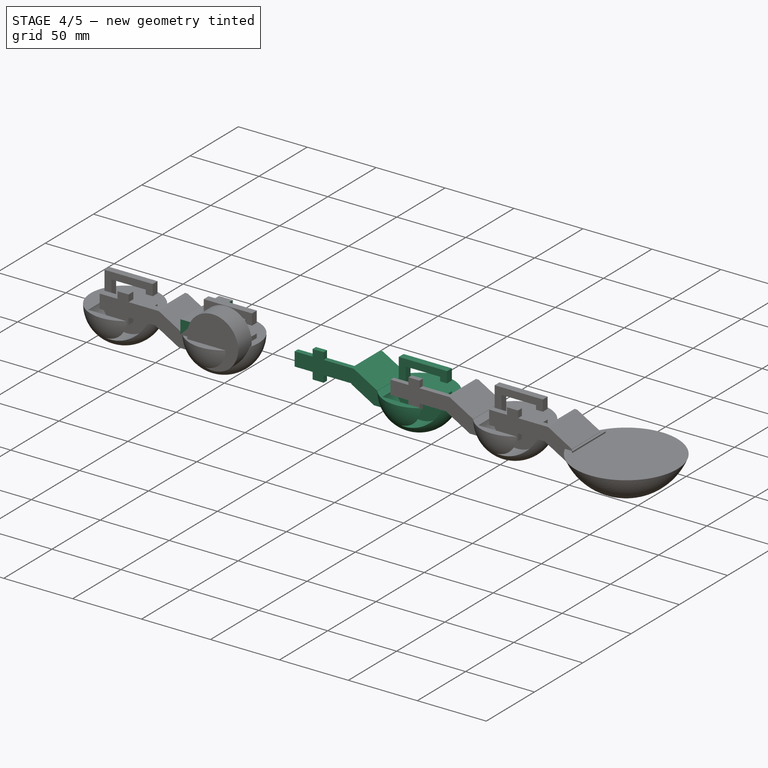
[diagram: stage 4 of 5 — iso view after this stage's code; geometry added in this stage tinted green]
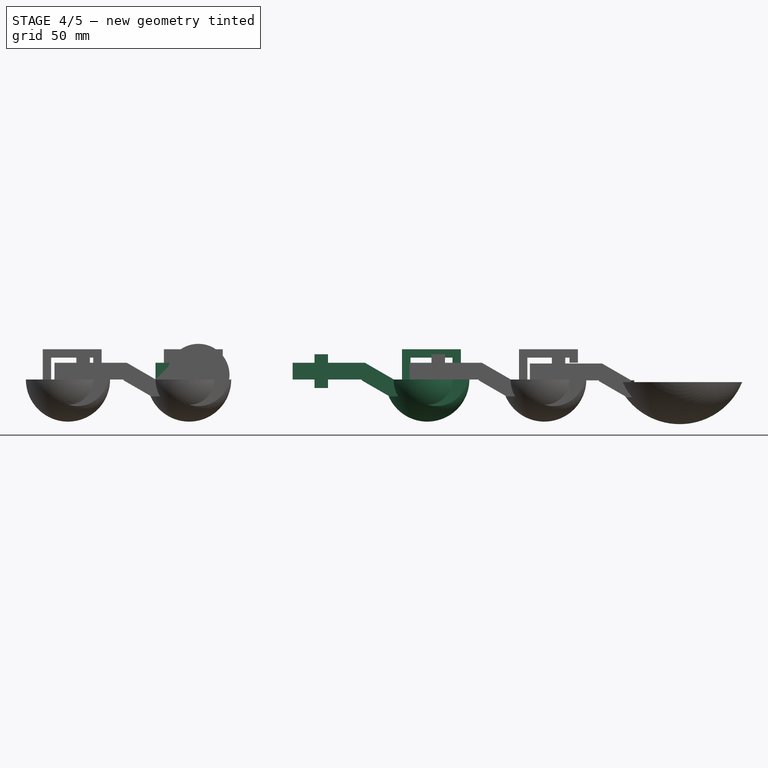
[diagram: stage 4 of 5 — front view after this stage's code; geometry added in this stage tinted green]
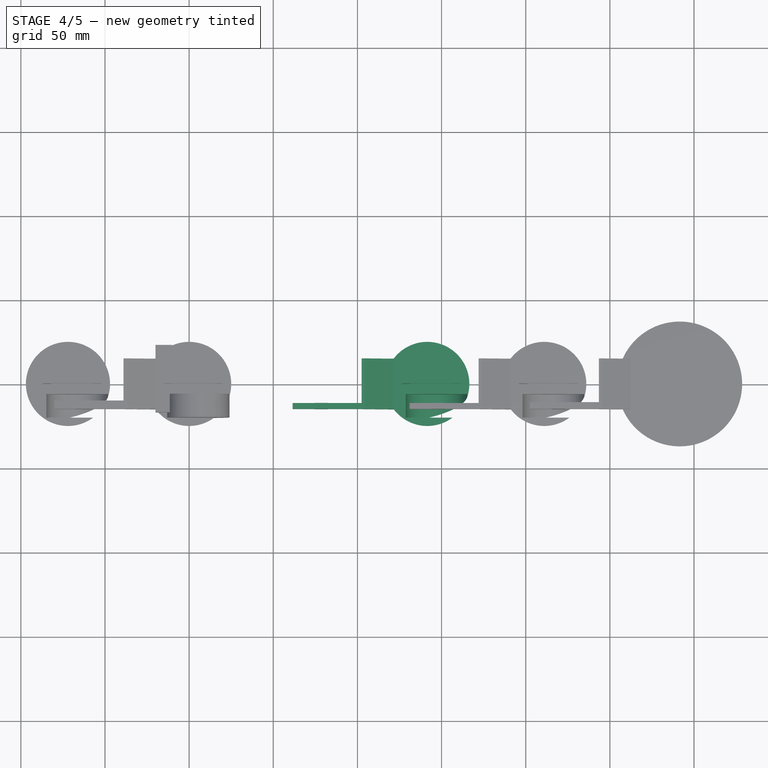
[diagram: stage 4 of 5 — top view after this stage's code; geometry added in this stage tinted green]
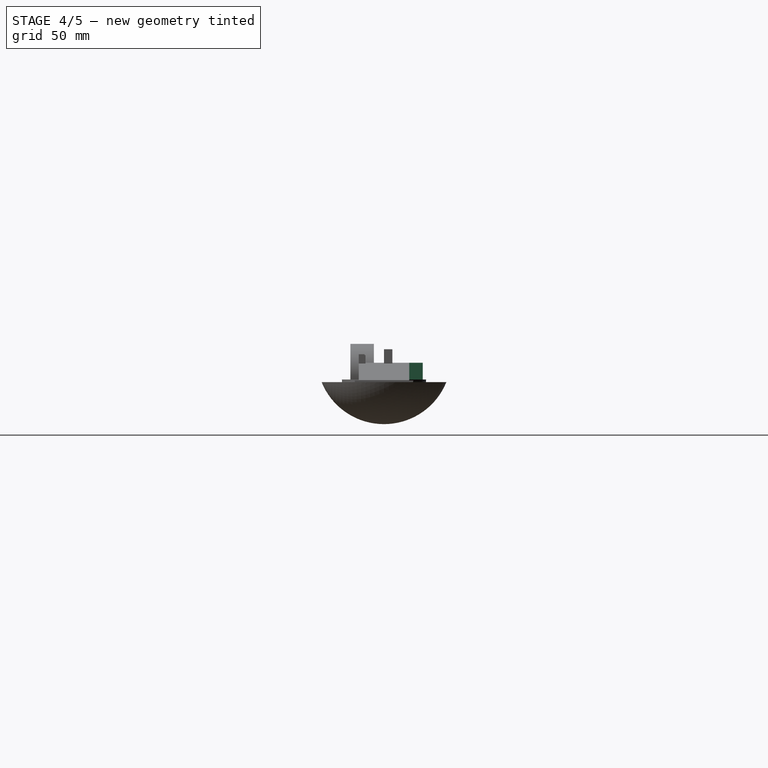
[diagram: stage 4 of 5 — right view after this stage's code; geometry added in this stage tinted green]
FEATURE [Part::Box] Box011  label="Cubo011"
  AttacherType = Attacher::AttachEngine3D
  Height = 320
  Length = 210
  Placement = pos=(0,-151,-150) rot=(0,0,1;0rad)
  Width = 320
FEATURE [Part::Box] Box012  label="Cubo012"
  AttacherType = Attacher::AttachEngine3D
  Height = 30
  Length = 30
  Placement = pos=(-44,-10,19) rot=(0,0,1;0rad)
  Width = 30
FEATURE [Part::Box] Box013  label="Cubo013"
  AttacherType = Attacher::AttachEngine3D
  Height = 10
  Length = 15
  Placement = pos=(-82,-17,15) rot=(0,0,1;0rad)
  Width = 10
FEATURE [Part::Box] Box014  label="Cubo014"
  AttacherType = Attacher::AttachEngine3D
  Height = 10
  Length = 15
  Placement = pos=(-82,-17,35) rot=(0,0,1;0rad)
  Width = 10
FEATURE [Part::Box] Box015  label="Cubo015"
  AttacherType = Attacher::AttachEngine3D
  Height = 10
  Length = 30
  Placement = pos=(-59,-18,15) rot=(0,0,1;0rad)
  Width = 10
FEATURE [Part::Box] Box016  label="Cubo016"
  AttacherType = Attacher::AttachEngine3D
  Height = 10
  Length = 30
  Placement = pos=(-59,-18,35) rot=(0,0,1;0rad)
  Width = 10
FEATURE [Part::Box] Box017  label="Cubo017"
  AttacherType = Attacher::AttachEngine3D
  Height = 20
  Length = 22
  Placement = pos=(-39,-15,15) rot=(0,0,1;0rad)
  Width = 30
FEATURE [Part::Box] Box018  label="Cubo018"
  AttacherType = Attacher::AttachEngine3D
  Height = 15
  Length = 21
  Placement = pos=(-37.99,-15,35.52) rot=(0,1,0;0.523599rad)
  Width = 30
FEATURE [Part::Box] Box019  label="Cubo019"
  AttacherType = Attacher::AttachEngine3D
  Height = 15
  Length = 21
  Placement = pos=(-46.5929,-15,11.6194) rot=(0,1,0;0.523599rad)
  Width = 30
FEATURE [Part::Box] Box020  label="Cubo020"
  AttacherType = Attacher::AttachEngine3D
  Height = 10
  Length = 10
  Placement = pos=(-20,-17,25) rot=(0,0,1;0rad)
  Width = 40
FEATURE [Sketcher::SketchObject] Sketch004
  FullyConstrained = false
  sketch-geometry (1):
    g0: Circle CenterX=53.4782 CenterY=36.9583 CenterZ=0 NormalX=0 NormalY=0 NormalZ=1 AngleXU=0 Radius=18.5
  constraints (1):
    c: Radius(g0) = 18.5
FEATURE [Part::Extrusion] Extrude009  label="hueco001"
  Base = -> Sketch004
  Dir = (0,0,1)
  DirMode = 2
  FaceMakerClass = Part::FaceMakerBullseye
  LengthFwd = 14
  LengthRev = 0
  Placement = pos=(-48,-6,-9.25) rot=(1,0,0;1.5708rad)
  Solid = true
  Symmetric = false
FEATURE [Sketcher::SketchObject] Sketch005
  FullyConstrained = false
  Placement = pos=(0,0,0) rot=(1,0,0;1.5708rad)
  sketch-geometry (8):
    g0: LineSegment StartX=0 StartY=0 StartZ=0 EndX=25 EndY=0 EndZ=0
    g1: LineSegment StartX=0 StartY=0 StartZ=0 EndX=0 EndY=-13 EndZ=0
    g2: LineSegment StartX=25 StartY=0 StartZ=0 EndX=25 EndY=-3 EndZ=0
    g3: LineSegment StartX=0 StartY=-13 StartZ=0 EndX=-5 EndY=-13 EndZ=0
    g4: LineSegment StartX=25 StartY=-3 StartZ=0 EndX=30 EndY=-3 EndZ=0
    g5: LineSegment StartX=-5 StartY=-13 StartZ=0 EndX=-5 EndY=5 EndZ=0
    g6: LineSegment StartX=30 StartY=-3 StartZ=0 EndX=30 EndY=5 EndZ=0
    g7: LineSegment StartX=-5 StartY=5 StartZ=0 EndX=30 EndY=5 EndZ=0
  constraints (20):
    c: Coincident(g0,g-1)
    c: Horizontal(g0)
    c: Coincident(g1,g0)
    c: Vertical(g1)
    c: Coincident(g2,g0)
    c: Vertical(g2)
    c: DistanceY(g2,g2) = 3
    c: Coincident(g3,g1)
    c: Horizontal(g3)
    c: Coincident(g4,g2)
    c: Horizontal(g4)
    c: Coincident(g5,g3)
    c: Coincident(g6,g4)
    c: Vertical(g6)
    c: Vertical(g5)
    c: DistanceY(g5,g5) = 18
    c: DistanceY(g6,g6) = 8
    c: Coincident(g7,g5)
    c: Coincident(g7,g6)
    c: Horizontal(g7)
FEATURE [Part::Extrusion] Extrude008
  Base = -> Sketch005
  Dir = (0,5,0)
  DirMode = 0
  FaceMakerClass = Part::FaceMakerBullseye
  LengthFwd = 5
  LengthRev = 0
  Solid = true
  Symmetric = false
FEATURE [Sketcher::SketchObject] Sketch006
  FullyConstrained = false
  Placement = pos=(0,0,0) rot=(1,0,0;1.5708rad)
  sketch-geometry (4):
    g0: LineSegment StartX=25 StartY=-13 StartZ=0 EndX=25 EndY=-10 EndZ=0
    g1: LineSegment StartX=30.0182 StartY=-13 StartZ=0 EndX=30.0182 EndY=-10 EndZ=0
    g2: LineSegment StartX=25 StartY=-10 StartZ=0 EndX=30.0182 EndY=-10 EndZ=0
    g3: LineSegment StartX=25 StartY=-13 StartZ=0 EndX=30.0182 EndY=-13 EndZ=0
  constraints (8):
    c: Vertical(g0)
    c: DistanceY(g0,g0) = 3
    c: Vertical(g1)
    c: DistanceY(g1,g1) = 3
    c: Coincident(g2,g0)
    c: Coincident(g2,g1)
    c: Coincident(g3,g0)
    c: Coincident(g3,g1)
FEATURE [Part::Extrusion] Extrude010
  Base = -> Sketch006
  Dir = (0,5,0)
  DirMode = 0
  FaceMakerClass = Part::FaceMakerBullseye
  LengthFwd = 5
  LengthRev = 0
  Solid = true
  Symmetric = false
FEATURE [Sketcher::SketchObject] Sketch007
  FullyConstrained = true
  MapMode = 2
  sketch-geometry (6):
    g0: LineSegment StartX=0 StartY=0 StartZ=0 EndX=0 EndY=-5 EndZ=0
    g1: LineSegment StartX=0 StartY=-5 StartZ=0 EndX=50 EndY=-5 EndZ=0
    g2: LineSegment StartX=50 StartY=-5 StartZ=0 EndX=50 EndY=15 EndZ=0
    g3: LineSegment StartX=50 StartY=15 StartZ=0 EndX=45 EndY=15 EndZ=0
    g4: LineSegment StartX=45 StartY=15 StartZ=0 EndX=45 EndY=0 EndZ=0
    g5: LineSegment StartX=45 StartY=0 StartZ=0 EndX=0 EndY=0 EndZ=0
  constraints (17):
    c: Coincident(g-1,g0)
    c: PointOnObject(g0,g-2)
    c: Coincident(g0,g1)
    c: Horizontal(g1)
    c: Coincident(g1,g2)
    c: Vertical(g2)
    c: Coincident(g2,g3)
    c: Horizontal(g3)
    c: Coincident(g3,g4)
    c: PointOnObject(g4,g-1)
    c: Vertical(g4)
    c: Coincident(g4,g5)
    c: Coincident(g5,g0)
    c: Distance(g1) = 50
    c: Distance(g0) = 5
    c: Distance(g3) = 5
    c: Distance(g4) = 15
FEATURE [Part::Extrusion] Extrude014
  Base = -> Sketch007
  Dir = (0,0,1)
  DirMode = 2
  FaceMakerClass = Part::FaceMakerBullseye
  LengthFwd = 20
  LengthRev = 0
  Solid = true
  Symmetric = false
FEATURE [Part::Sphere] Sphere002  label="Esfera002"
  Angle1 = -90
  Angle2 = 90
  Angle3 = 360
  AttacherType = Attacher::AttachEngine3D
  Radius = 150
FEATURE [Part::Cut] Cut013
  Base = -> Sphere002
  Tool = -> Box011
FEATURE [Part::Sphere] Sphere003  label="Esfera003"
  Angle1 = -90
  Angle2 = 90
  Angle3 = 360
  AttacherType = Attacher::AttachEngine3D
  Radius = 25
FEATURE [Part::Cut] Cut014
  Base = -> Sphere003
  Placement = pos=(10,0,-13) rot=(0,1,0;1.5708rad)
  Tool = -> Cut013
FEATURE [Part::MultiFuse] Fusion006
  Shapes = -> [Extrude008,Cut014]
FEATURE [Part::Fuse] Fusion007
  Base = -> Fusion006
  Placement = pos=(-10,0,38) rot=(0,0,1;0rad)
  Tool = -> Extrude010
FEATURE [Part::Feature] circle1175
  Placement = pos=(80.8508,-13.1887,0) rot=(0,0,1;0rad)
  shape: bbox 0.8152 x 0.9368 x 1.995e-06 mm, 0 faces, 0 solids (baked)
FEATURE [Part::Extrusion] Extrude013
  Base = -> circle1175
  Dir = (0,0,1)
  DirMode = 2
  FaceMakerClass = Part::FaceMakerBullseye
  LengthFwd = 2
  LengthRev = 0
  Placement = pos=(22.5,0,0) rot=(0,0,1;0rad)
  Solid = true
  Symmetric = false
FEATURE [Part::Feature] circle1176
  Placement = pos=(80.8508,-10.0656,0) rot=(0,0,1;0rad)
  shape: bbox 0.8152 x 0.9368 x 1.995e-06 mm, 0 faces, 0 solids (baked)
FEATURE [Part::Extrusion] Extrude012
  Base = -> circle1176
  Dir = (0,0,1)
  DirMode = 2
  FaceMakerClass = Part::FaceMakerBullseye
  LengthFwd = 2
  LengthRev = 0
  Placement = pos=(22.5,0,0) rot=(0,0,1;0rad)
  Solid = true
  Symmetric = false
FEATURE [Part::Feature] path285
  shape: bbox 16.5 x 34.62 x 2e-07 mm, 0 faces, 0 solids (baked)
FEATURE [Part::Extrusion] Extrude011
  Base = -> path285
  Dir = (0,0,1)
  DirMode = 0
  FaceMakerClass = Part::FaceMakerBullseye
  LengthFwd = 1
  LengthRev = 0
  Solid = true
  Symmetric = false
FEATURE [Part::Fuse] Fusion008
  Base = -> Extrude011
  Tool = -> Extrude012
FEATURE [Part::Fuse] Fusion009
  Base = -> Fusion008
  Placement = pos=(46,2.9e-14,98) rot=(0.57735,0.57735,-0.57735;2.0944rad)
  Tool = -> Extrude013
FEATURE [Part::Cut] Cut016  label="agarre002"
  Base = -> Extrude014
  Placement = pos=(-80,-10,20) rot=(0,0,1;0rad)
  Tool = -> Fusion009
FEATURE [Part::Cut] Cut017
  Base = -> Cut016
  Tool = -> Box012
FEATURE [Part::Cut] Cut018
  Base = -> Cut017
  Tool = -> Box013
FEATURE [Part::Cut] Cut019
  Base = -> Cut018
  Tool = -> Box014
FEATURE [Part::Cut] Cut020
  Base = -> Cut019
  Tool = -> Box015
FEATURE [Part::Cut] Cut021
  Base = -> Cut020
  Tool = -> Box016
FEATURE [Part::MultiFuse] Fusion010
  Shapes = -> [Cut021,Box017]
FEATURE [Part::Cut] Cut022
  Base = -> Fusion010
  Tool = -> Box018
FEATURE [Part::Cut] Cut023
  Base = -> Cut022
  Tool = -> Box019
FEATURE [Part::Box] Box030  label="Cubo030"
  AttacherType = Attacher::AttachEngine3D
  Height = 15
  Length = 21
  Placement = pos=(-46.5929,-15,11.6194) rot=(0,1,0;0.523599rad)
  Width = 30
FEATURE [Part::Box] Box031  label="Cubo031"
  AttacherType = Attacher::AttachEngine3D
  Height = 10
  Length = 10
  Placement = pos=(-20,-17,25) rot=(0,0,1;0rad)
  Width = 40
FEATURE [Part::Box] Box032  label="Cubo032"
  AttacherType = Attacher::AttachEngine3D
  Height = 24
  Length = 43
  Placement = pos=(-82,-11.5,17.5) rot=(0,0,1;0rad)
  Width = 4
FEATURE [Part::Cut] Cut028  label="base002"
  Base = -> Fusion013
  Tool = -> Extrude016
FEATURE [Part::Cut] Cut035
  Base = -> Fusion016
  Tool = -> Box029
FEATURE [Part::Cut] Cut036
  Base = -> Cut035
  Tool = -> Box030
FEATURE [Part::Cut] Cut037  label="agarre005"
  Base = -> Cut036
  Tool = -> Box031
FEATURE [Part::Cut] Cut038
  Base = -> Cut037
  Tool = -> Box032
FEATURE [Part::MultiFuse] Fusion017  label="intermedio2"
  Placement = pos=(141.5,0,0) rot=(0,0,1;0rad)
  Shapes = -> [Cut028,Cut038]
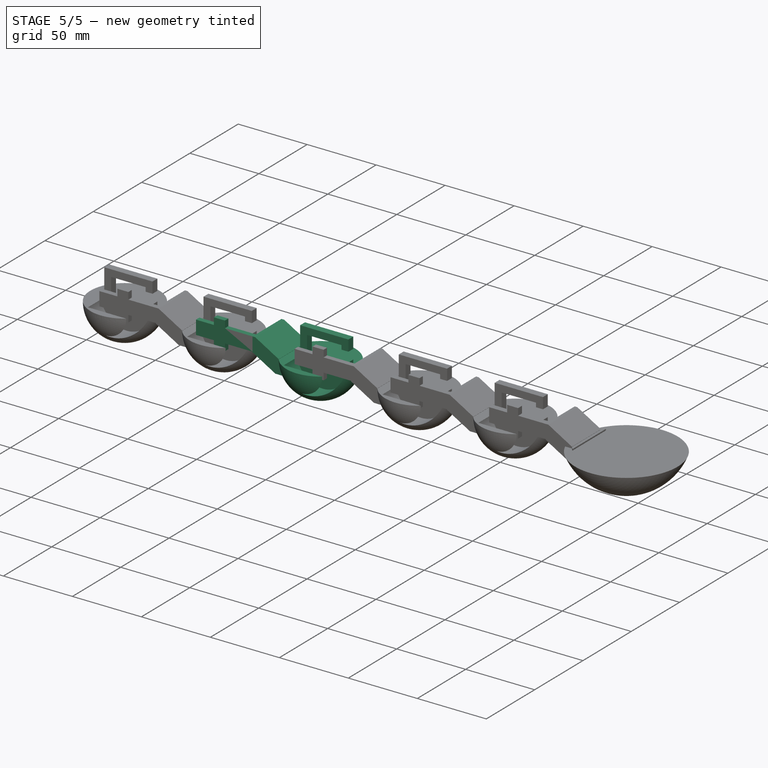
[diagram: stage 5 of 5 — iso view after this stage's code; geometry added in this stage tinted green]
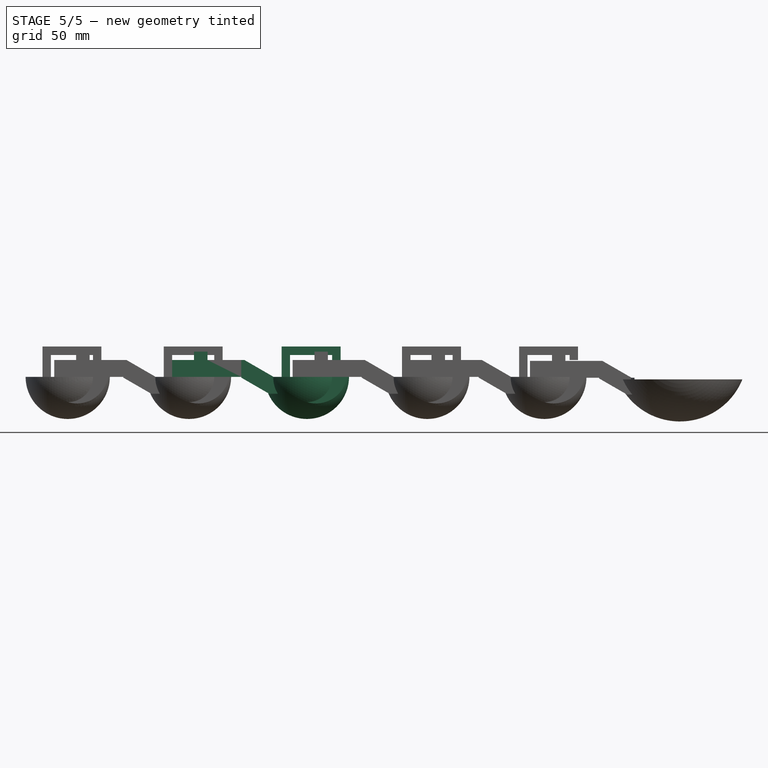
[diagram: stage 5 of 5 — front view after this stage's code; geometry added in this stage tinted green]
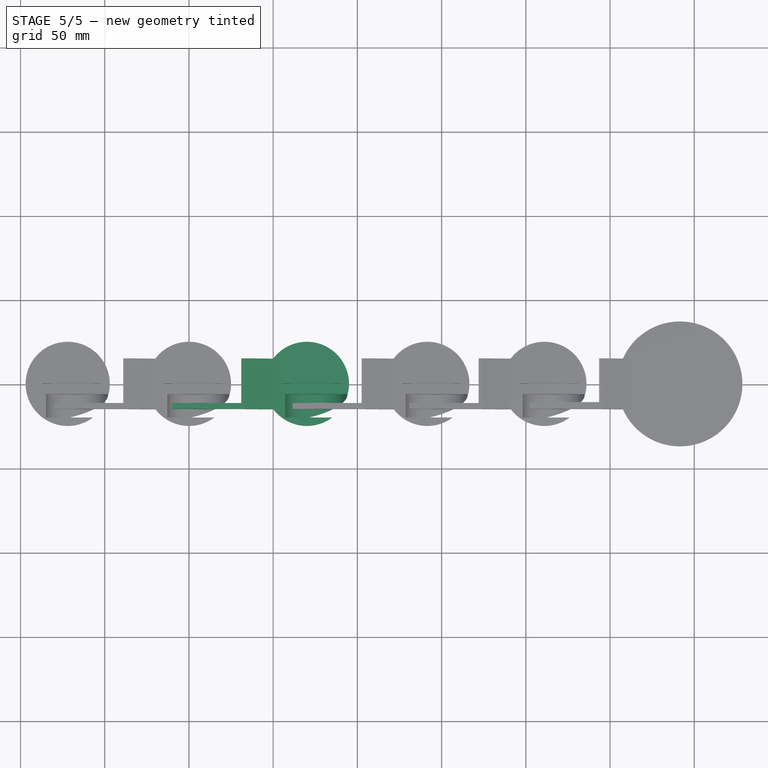
[diagram: stage 5 of 5 — top view after this stage's code; geometry added in this stage tinted green]
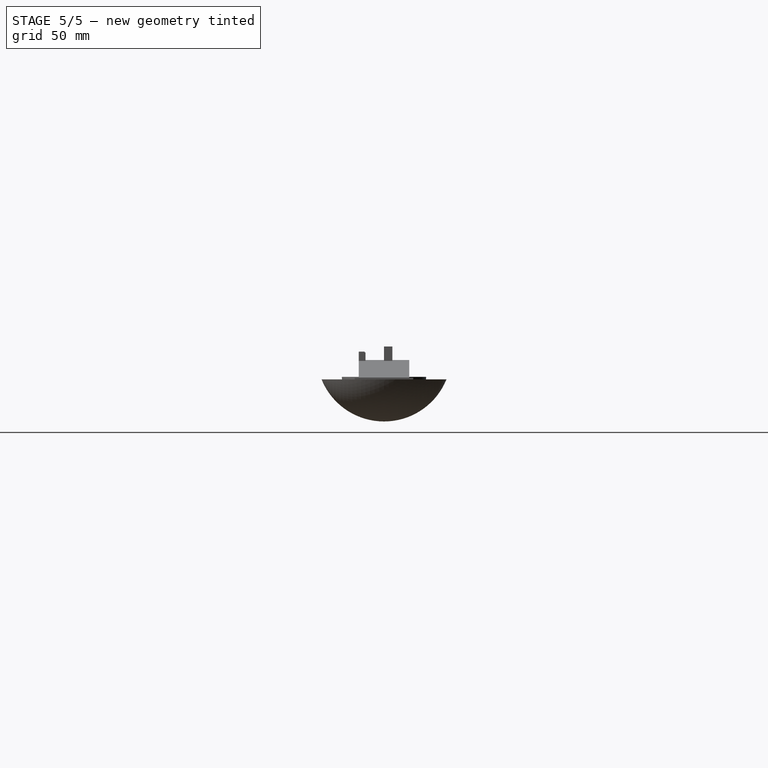
[diagram: stage 5 of 5 — right view after this stage's code; geometry added in this stage tinted green]
FEATURE [Part::Box] Box  label="Cubo"
  AttacherType = Attacher::AttachEngine3D
  Height = 320
  Length = 210
  Placement = pos=(0,-151,-150) rot=(0,0,1;0rad)
  Width = 320
FEATURE [Part::Box] Box001  label="Cubo001"
  AttacherType = Attacher::AttachEngine3D
  Height = 30
  Length = 30
  Placement = pos=(-44,-10,19) rot=(0,0,1;0rad)
  Width = 30
FEATURE [Part::Box] Box002  label="Cubo002"
  AttacherType = Attacher::AttachEngine3D
  Height = 10
  Length = 15
  Placement = pos=(-82,-17,15) rot=(0,0,1;0rad)
  Width = 10
FEATURE [Part::Box] Box003  label="Cubo003"
  AttacherType = Attacher::AttachEngine3D
  Height = 10
  Length = 15
  Placement = pos=(-82,-17,35) rot=(0,0,1;0rad)
  Width = 10
FEATURE [Part::Box] Box004  label="Cubo004"
  AttacherType = Attacher::AttachEngine3D
  Height = 10
  Length = 30
  Placement = pos=(-59,-18,15) rot=(0,0,1;0rad)
  Width = 10
FEATURE [Part::Box] Box005  label="Cubo005"
  AttacherType = Attacher::AttachEngine3D
  Height = 10
  Length = 30
  Placement = pos=(-59,-18,35) rot=(0,0,1;0rad)
  Width = 10
FEATURE [Part::Box] Box006  label="Cubo006"
  AttacherType = Attacher::AttachEngine3D
  Height = 20
  Length = 22
  Placement = pos=(-39,-15,15) rot=(0,0,1;0rad)
  Width = 30
FEATURE [Part::Box] Box007  label="Cubo007"
  AttacherType = Attacher::AttachEngine3D
  Height = 15
  Length = 21
  Placement = pos=(-37.99,-15,35.52) rot=(0,1,0;0.523599rad)
  Width = 30
FEATURE [Part::Box] Box008  label="Cubo008"
  AttacherType = Attacher::AttachEngine3D
  Height = 15
  Length = 21
  Placement = pos=(-46.5929,-15,11.6194) rot=(0,1,0;0.523599rad)
  Width = 30
FEATURE [Part::Box] Box009  label="Cubo009"
  AttacherType = Attacher::AttachEngine3D
  Height = 10
  Length = 10
  Placement = pos=(-20,-17,25) rot=(0,0,1;0rad)
  Width = 40
FEATURE [Part::Box] Box010  label="Cubo010"
  AttacherType = Attacher::AttachEngine3D
  Height = 24
  Length = 43
  Placement = pos=(-82,-11.5,17.5) rot=(0,0,1;0rad)
  Width = 4
FEATURE [Sketcher::SketchObject] Sketch
  FullyConstrained = false
  sketch-geometry (1):
    g0: Circle CenterX=53.4782 CenterY=36.9583 CenterZ=0 NormalX=0 NormalY=0 NormalZ=1 AngleXU=0 Radius=18.5
  constraints (1):
    c: Radius(g0) = 18.5
FEATURE [Part::Extrusion] Extrude001  label="hueco"
  Base = -> Sketch
  Dir = (0,0,1)
  DirMode = 2
  FaceMakerClass = Part::FaceMakerBullseye
  LengthFwd = 14
  LengthRev = 0
  Placement = pos=(-48,-6,-9.25) rot=(1,0,0;1.5708rad)
  Solid = true
  Symmetric = false
FEATURE [Sketcher::SketchObject] Sketch001
  FullyConstrained = false
  Placement = pos=(0,0,0) rot=(1,0,0;1.5708rad)
  sketch-geometry (8):
    g0: LineSegment StartX=0 StartY=0 StartZ=0 EndX=25 EndY=0 EndZ=0
    g1: LineSegment StartX=0 StartY=0 StartZ=0 EndX=0 EndY=-13 EndZ=0
    g2: LineSegment StartX=25 StartY=0 StartZ=0 EndX=25 EndY=-3 EndZ=0
    g3: LineSegment StartX=0 StartY=-13 StartZ=0 EndX=-5 EndY=-13 EndZ=0
    g4: LineSegment StartX=25 StartY=-3 StartZ=0 EndX=30 EndY=-3 EndZ=0
    g5: LineSegment StartX=-5 StartY=-13 StartZ=0 EndX=-5 EndY=5 EndZ=0
    g6: LineSegment StartX=30 StartY=-3 StartZ=0 EndX=30 EndY=5 EndZ=0
    g7: LineSegment StartX=-5 StartY=5 StartZ=0 EndX=30 EndY=5 EndZ=0
  constraints (20):
    c: Coincident(g0,g-1)
    c: Horizontal(g0)
    c: Coincident(g1,g0)
    c: Vertical(g1)
    c: Coincident(g2,g0)
    c: Vertical(g2)
    c: DistanceY(g2,g2) = 3
    c: Coincident(g3,g1)
    c: Horizontal(g3)
    c: Coincident(g4,g2)
    c: Horizontal(g4)
    c: Coincident(g5,g3)
    c: Coincident(g6,g4)
    c: Vertical(g6)
    c: Vertical(g5)
    c: DistanceY(g5,g5) = 18
    c: DistanceY(g6,g6) = 8
    c: Coincident(g7,g5)
    c: Coincident(g7,g6)
    c: Horizontal(g7)
FEATURE [Part::Extrusion] Extrude
  Base = -> Sketch001
  Dir = (0,5,0)
  DirMode = 0
  FaceMakerClass = Part::FaceMakerBullseye
  LengthFwd = 5
  LengthRev = 0
  Solid = true
  Symmetric = false
FEATURE [Sketcher::SketchObject] Sketch002
  FullyConstrained = false
  Placement = pos=(0,0,0) rot=(1,0,0;1.5708rad)
  sketch-geometry (4):
    g0: LineSegment StartX=25 StartY=-13 StartZ=0 EndX=25 EndY=-10 EndZ=0
    g1: LineSegment StartX=30.0182 StartY=-13 StartZ=0 EndX=30.0182 EndY=-10 EndZ=0
    g2: LineSegment StartX=25 StartY=-10 StartZ=0 EndX=30.0182 EndY=-10 EndZ=0
    g3: LineSegment StartX=25 StartY=-13 StartZ=0 EndX=30.0182 EndY=-13 EndZ=0
  constraints (8):
    c: Vertical(g0)
    c: DistanceY(g0,g0) = 3
    c: Vertical(g1)
    c: DistanceY(g1,g1) = 3
    c: Coincident(g2,g0)
    c: Coincident(g2,g1)
    c: Coincident(g3,g0)
    c: Coincident(g3,g1)
FEATURE [Part::Extrusion] Extrude002
  Base = -> Sketch002
  Dir = (0,5,0)
  DirMode = 0
  FaceMakerClass = Part::FaceMakerBullseye
  LengthFwd = 5
  LengthRev = 0
  Solid = true
  Symmetric = false
FEATURE [Sketcher::SketchObject] Sketch003
  FullyConstrained = true
  MapMode = 2
  sketch-geometry (6):
    g0: LineSegment StartX=0 StartY=0 StartZ=0 EndX=0 EndY=-5 EndZ=0
    g1: LineSegment StartX=0 StartY=-5 StartZ=0 EndX=50 EndY=-5 EndZ=0
    g2: LineSegment StartX=50 StartY=-5 StartZ=0 EndX=50 EndY=15 EndZ=0
    g3: LineSegment StartX=50 StartY=15 StartZ=0 EndX=45 EndY=15 EndZ=0
    g4: LineSegment StartX=45 StartY=15 StartZ=0 EndX=45 EndY=0 EndZ=0
    g5: LineSegment StartX=45 StartY=0 StartZ=0 EndX=0 EndY=0 EndZ=0
  constraints (17):
    c: Coincident(g-1,g0)
    c: PointOnObject(g0,g-2)
    c: Coincident(g0,g1)
    c: Horizontal(g1)
    c: Coincident(g1,g2)
    c: Vertical(g2)
    c: Coincident(g2,g3)
    c: Horizontal(g3)
    c: Coincident(g3,g4)
    c: PointOnObject(g4,g-1)
    c: Vertical(g4)
    c: Coincident(g4,g5)
    c: Coincident(g5,g0)
    c: Distance(g1) = 50
    c: Distance(g0) = 5
    c: Distance(g3) = 5
    c: Distance(g4) = 15
FEATURE [Part::Extrusion] Extrude007
  Base = -> Sketch003
  Dir = (0,0,1)
  DirMode = 2
  FaceMakerClass = Part::FaceMakerBullseye
  LengthFwd = 20
  LengthRev = 0
  Solid = true
  Symmetric = false
FEATURE [Part::Sphere] Sphere  label="Esfera"
  Angle1 = -90
  Angle2 = 90
  Angle3 = 360
  AttacherType = Attacher::AttachEngine3D
  Radius = 150
FEATURE [Part::Cut] Cut
  Base = -> Sphere
  Tool = -> Box
FEATURE [Part::Sphere] Sphere001  label="Esfera001"
  Angle1 = -90
  Angle2 = 90
  Angle3 = 360
  AttacherType = Attacher::AttachEngine3D
  Radius = 25
FEATURE [Part::Cut] Cut001
  Base = -> Sphere001
  Placement = pos=(10,0,-13) rot=(0,1,0;1.5708rad)
  Tool = -> Cut
FEATURE [Part::MultiFuse] Fusion
  Shapes = -> [Extrude,Cut001]
FEATURE [Part::Fuse] Fusion001
  Base = -> Fusion
  Placement = pos=(-10,0,38) rot=(0,0,1;0rad)
  Tool = -> Extrude002
FEATURE [Part::Cut] Cut002  label="base"
  Base = -> Fusion001
  Tool = -> Extrude001
FEATURE [Part::Feature] circle1173
  Placement = pos=(80.8508,-13.1887,0) rot=(0,0,1;0rad)
  shape: bbox 0.8152 x 0.9368 x 1.995e-06 mm, 0 faces, 0 solids (baked)
FEATURE [Part::Extrusion] Extrude006
  Base = -> circle1173
  Dir = (0,0,1)
  DirMode = 2
  FaceMakerClass = Part::FaceMakerBullseye
  LengthFwd = 2
  LengthRev = 0
  Placement = pos=(22.5,0,0) rot=(0,0,1;0rad)
  Solid = true
  Symmetric = false
FEATURE [Part::Feature] circle1174
  Placement = pos=(80.8508,-10.0656,0) rot=(0,0,1;0rad)
  shape: bbox 0.8152 x 0.9368 x 1.995e-06 mm, 0 faces, 0 solids (baked)
FEATURE [Part::Extrusion] Extrude005
  Base = -> circle1174
  Dir = (0,0,1)
  DirMode = 2
  FaceMakerClass = Part::FaceMakerBullseye
  LengthFwd = 2
  LengthRev = 0
  Placement = pos=(22.5,0,0) rot=(0,0,1;0rad)
  Solid = true
  Symmetric = false
FEATURE [Part::Feature] path284
  shape: bbox 16.5 x 34.62 x 2e-07 mm, 0 faces, 0 solids (baked)
FEATURE [Part::Extrusion] Extrude004
  Base = -> path284
  Dir = (0,0,1)
  DirMode = 0
  FaceMakerClass = Part::FaceMakerBullseye
  LengthFwd = 1
  LengthRev = 0
  Solid = true
  Symmetric = false
FEATURE [Part::Fuse] Fusion002
  Base = -> Extrude004
  Tool = -> Extrude005
FEATURE [Part::Fuse] Fusion003
  Base = -> Fusion002
  Placement = pos=(46,2.9e-14,98) rot=(0.57735,0.57735,-0.57735;2.0944rad)
  Tool = -> Extrude006
FEATURE [Part::Cut] Cut003  label="agarre"
  Base = -> Extrude007
  Placement = pos=(-80,-10,20) rot=(0,0,1;0rad)
  Tool = -> Fusion003
FEATURE [Part::Cut] Cut004
  Base = -> Cut003
  Tool = -> Box001
FEATURE [Part::Cut] Cut005
  Base = -> Cut004
  Tool = -> Box002
FEATURE [Part::Cut] Cut006
  Base = -> Cut005
  Tool = -> Box003
FEATURE [Part::Cut] Cut007
  Base = -> Cut006
  Tool = -> Box004
FEATURE [Part::Cut] Cut008
  Base = -> Cut007
  Tool = -> Box005
FEATURE [Part::MultiFuse] Fusion004
  Shapes = -> [Cut008,Box006]
FEATURE [Part::Cut] Cut009
  Base = -> Fusion004
  Tool = -> Box007
FEATURE [Part::Cut] Cut010
  Base = -> Cut009
  Tool = -> Box008
FEATURE [Part::Cut] Cut011  label="agarre001"
  Base = -> Cut010
  Tool = -> Box009
FEATURE [Part::Cut] Cut012
  Base = -> Cut011
  Tool = -> Box010
FEATURE [Part::MultiFuse] Fusion005  label="intermedio4"
  Shapes = -> [Cut002,Cut012]
FEATURE [Part::Box] Box021  label="Cubo021"
  AttacherType = Attacher::AttachEngine3D
  Height = 24
  Length = 43
  Placement = pos=(-82,-11.5,17.5) rot=(0,0,1;0rad)
  Width = 4
FEATURE [Part::Cut] Cut015  label="base001"
  Base = -> Fusion007
  Tool = -> Extrude009
FEATURE [Part::Cut] Cut024  label="agarre003"
  Base = -> Cut023
  Tool = -> Box020
FEATURE [Part::Cut] Cut025
  Base = -> Cut024
  Tool = -> Box021
FEATURE [Part::MultiFuse] Fusion011  label="intermedio3"
  Placement = pos=(70,0,0) rot=(0,0,1;0rad)
  Shapes = -> [Cut015,Cut025]
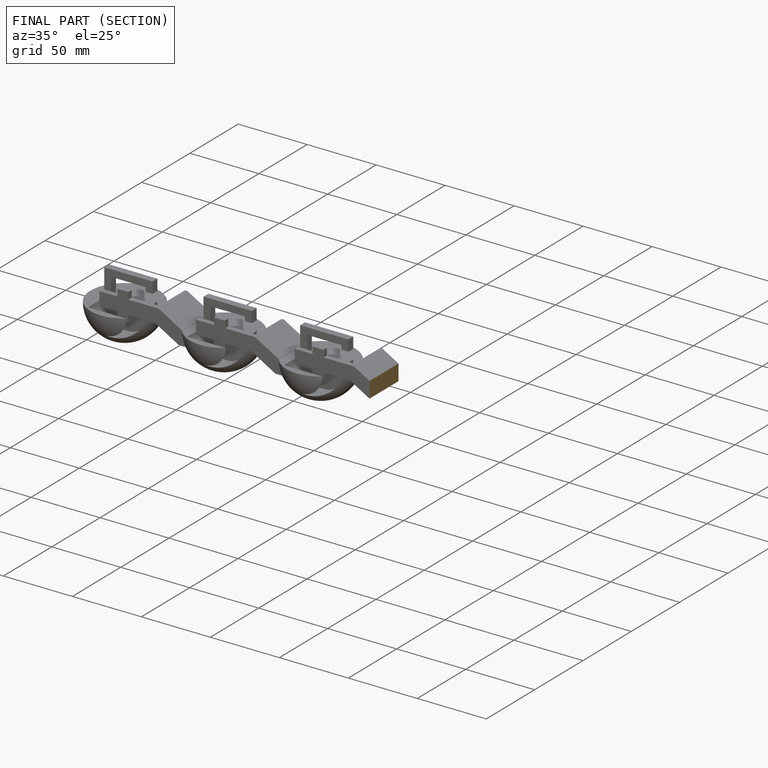
[diagram: finished part — half-section view (interior)]
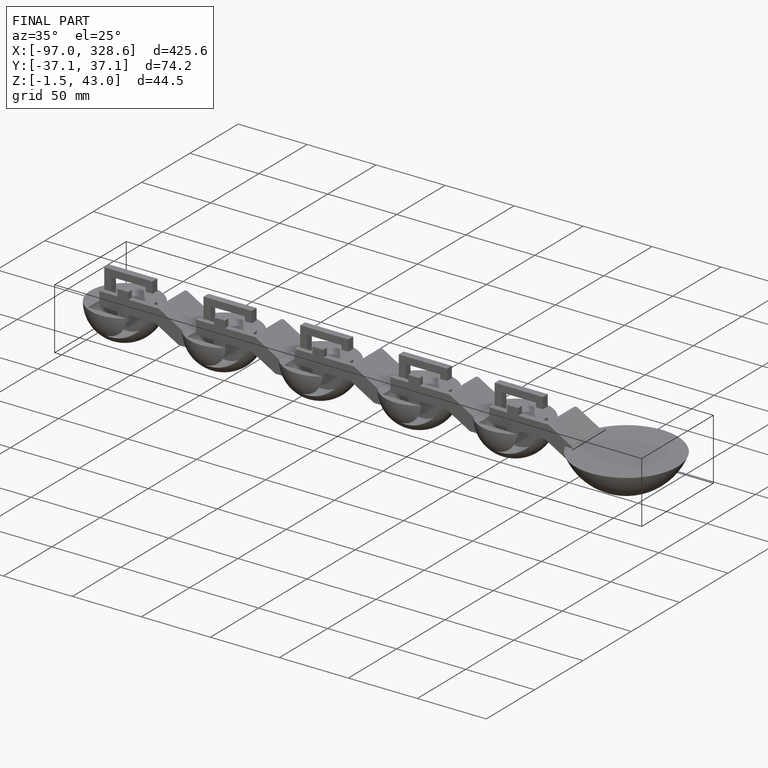
[diagram: finished part — iso view with bounding-box wireframe]
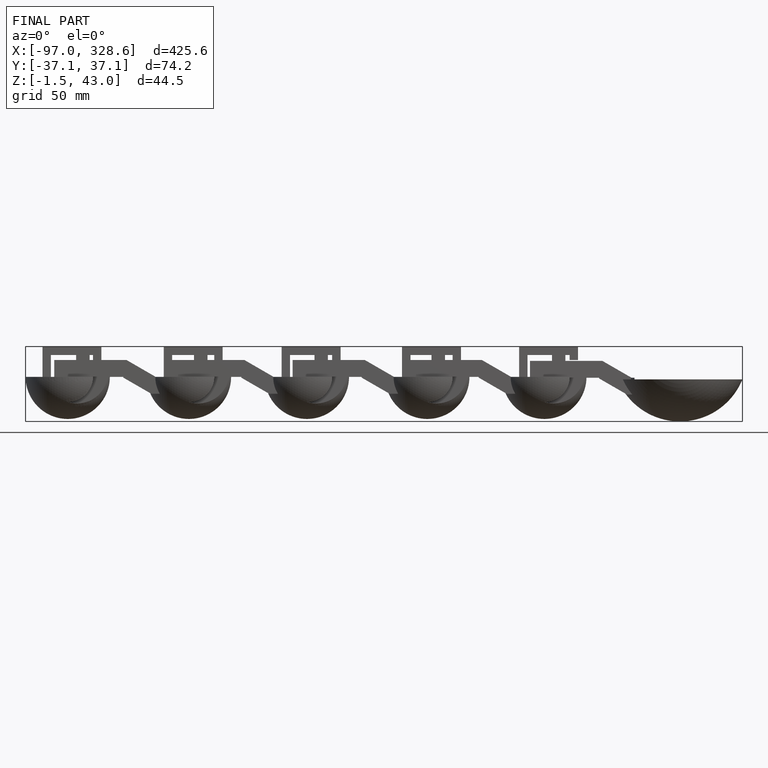
[diagram: finished part — front view with bounding-box wireframe]
